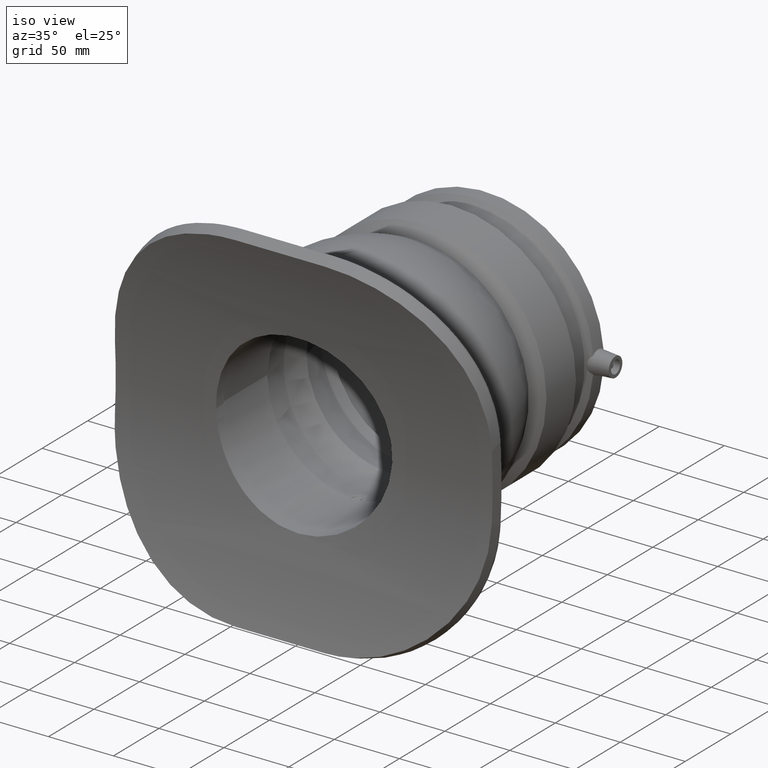
[diagram: clean part render]
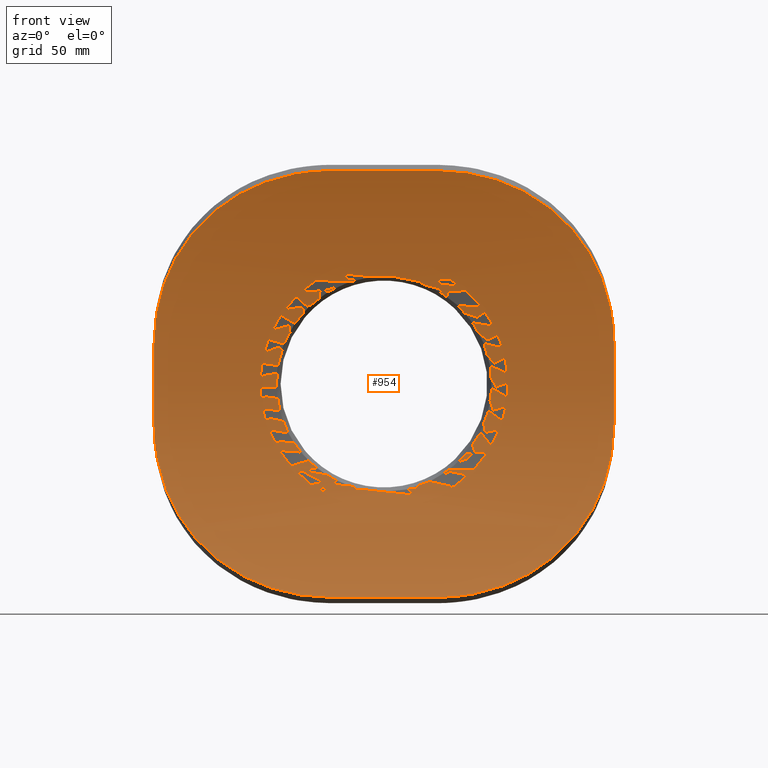
[diagram: tour spotlight — one face highlighted and labeled with its STEP entity id]
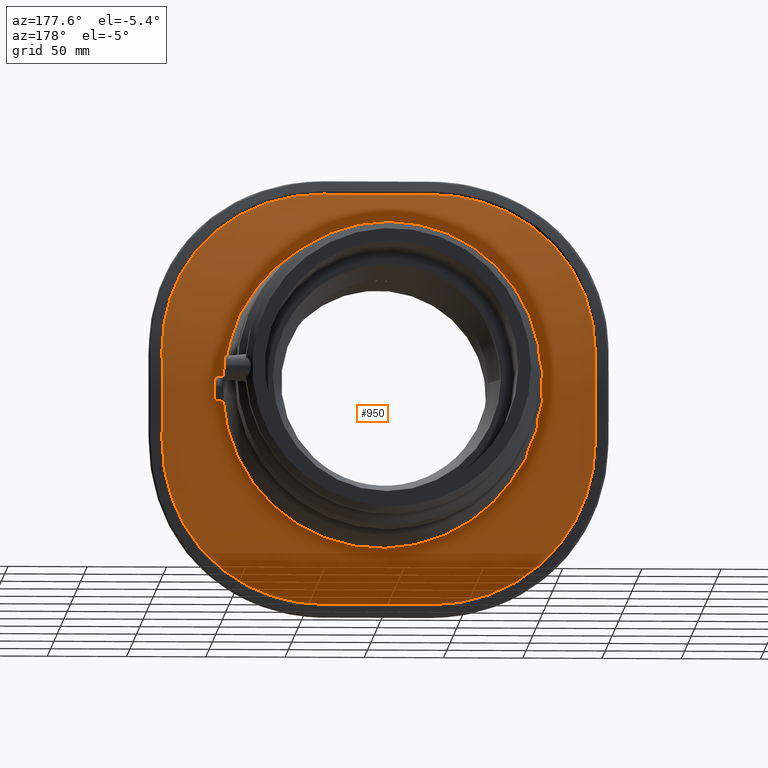
[diagram: tour spotlight — one face highlighted and labeled with its STEP entity id]
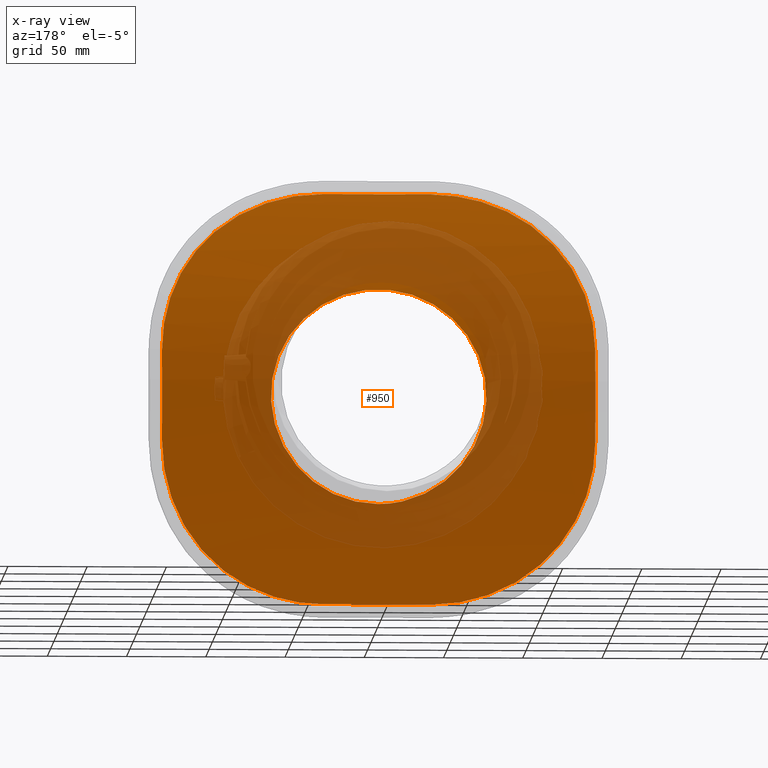
[diagram: x-ray of the same camera — body ghosted, this tour face saturated]
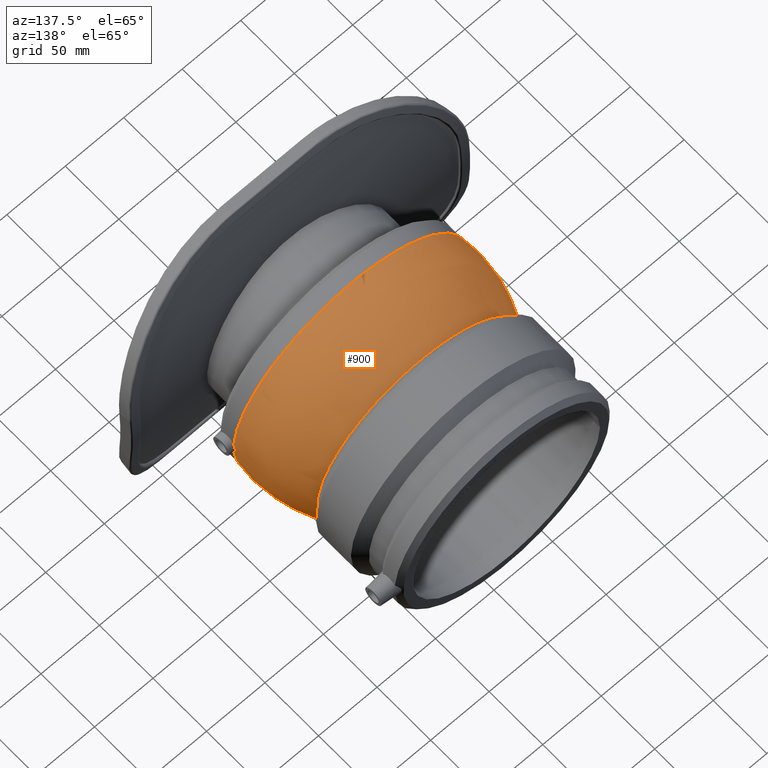
[diagram: tour spotlight — one face highlighted and labeled with its STEP entity id]
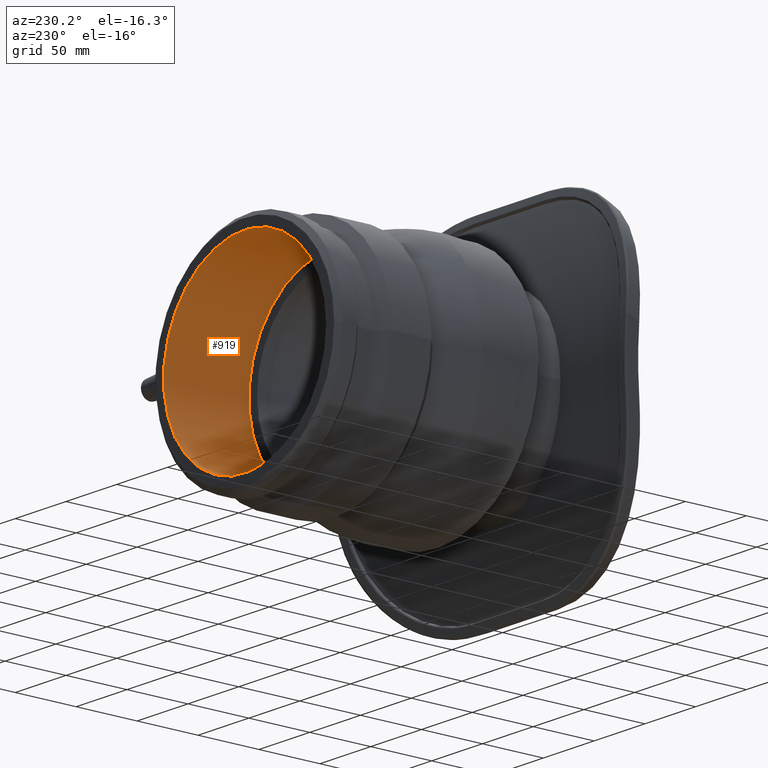
[diagram: tour spotlight — one face highlighted and labeled with its STEP entity id]
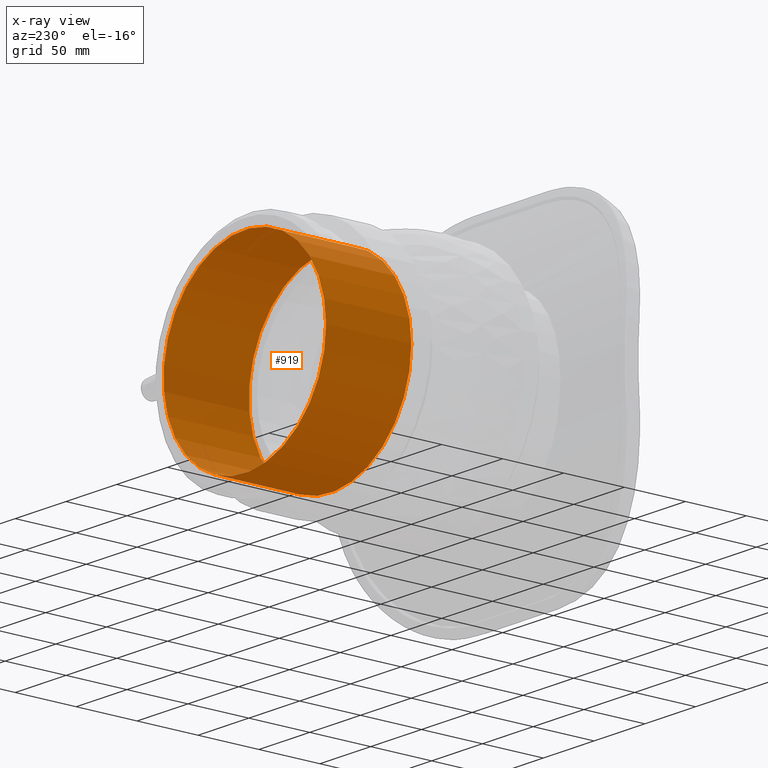
[diagram: x-ray of the same camera — body ghosted, this tour face saturated]
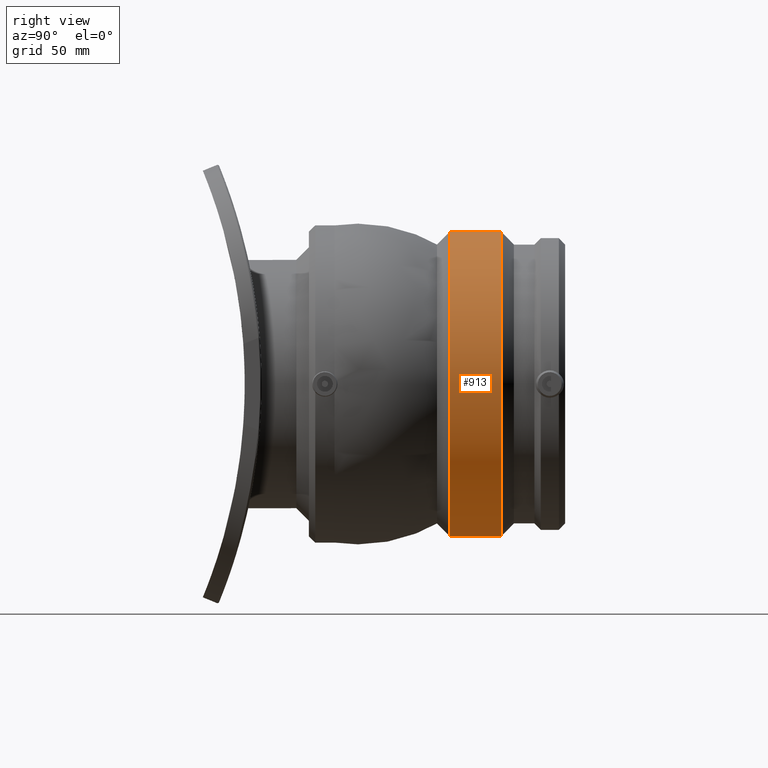
[diagram: tour spotlight — one face highlighted and labeled with its STEP entity id]
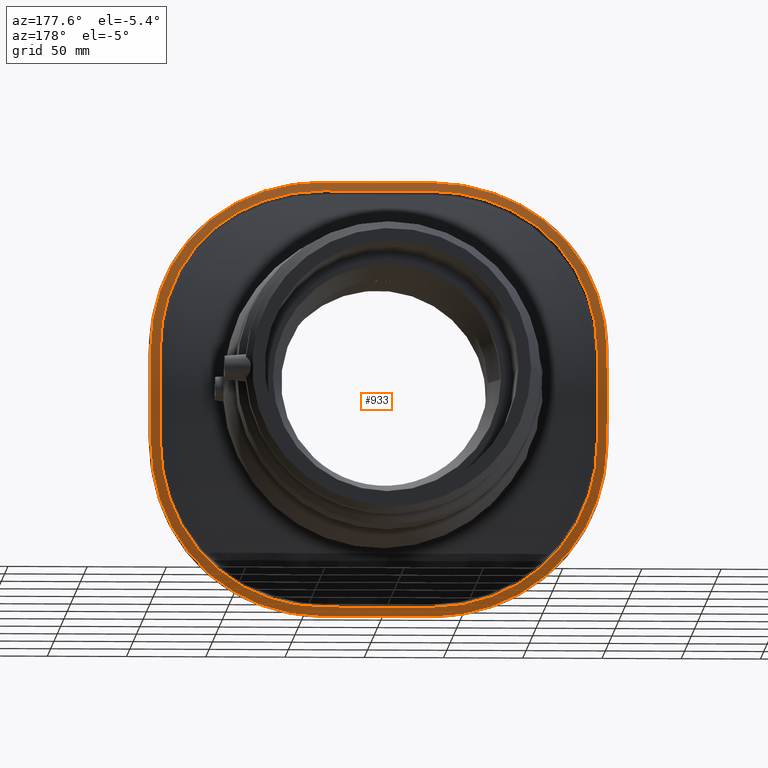
[diagram: tour spotlight — one face highlighted and labeled with its STEP entity id]
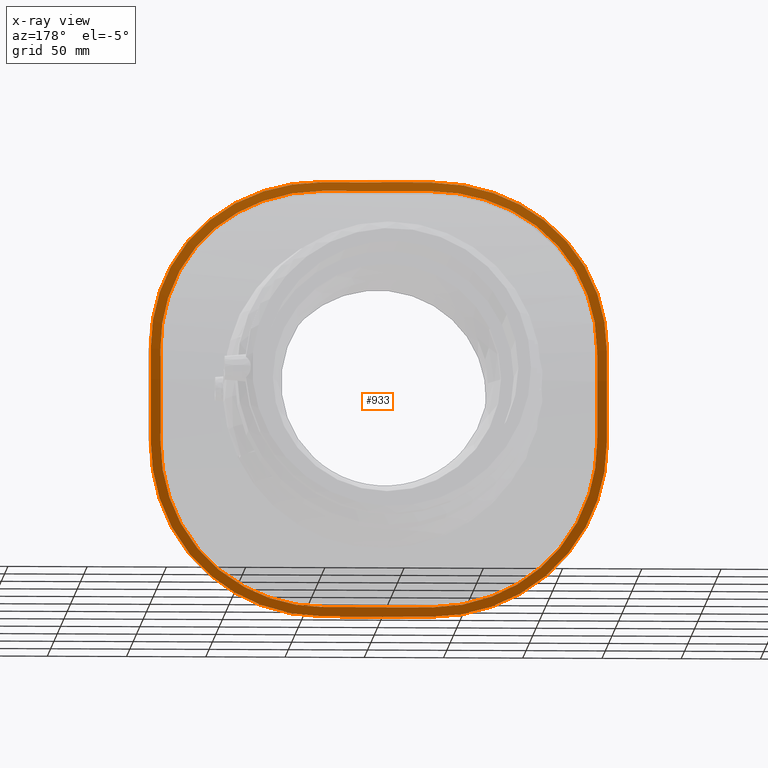
[diagram: x-ray of the same camera — body ghosted, this tour face saturated]
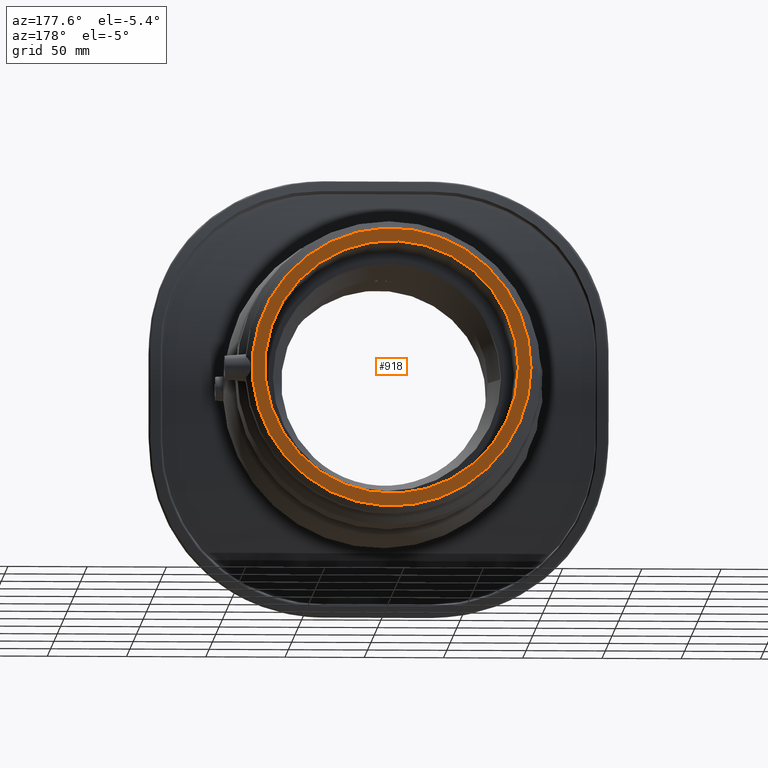
[diagram: tour spotlight — one face highlighted and labeled with its STEP entity id]
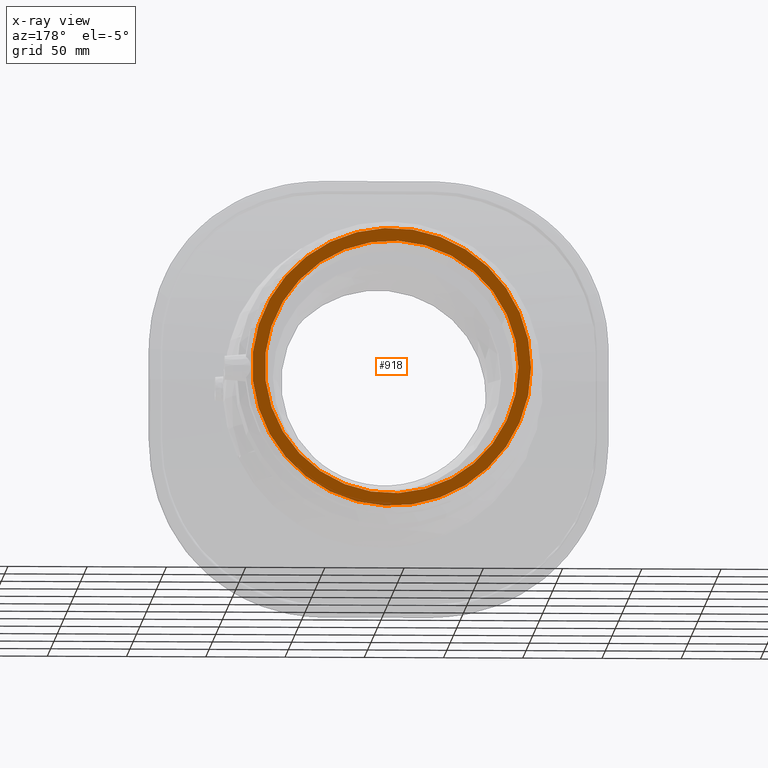
[diagram: x-ray of the same camera — body ghosted, this tour face saturated]
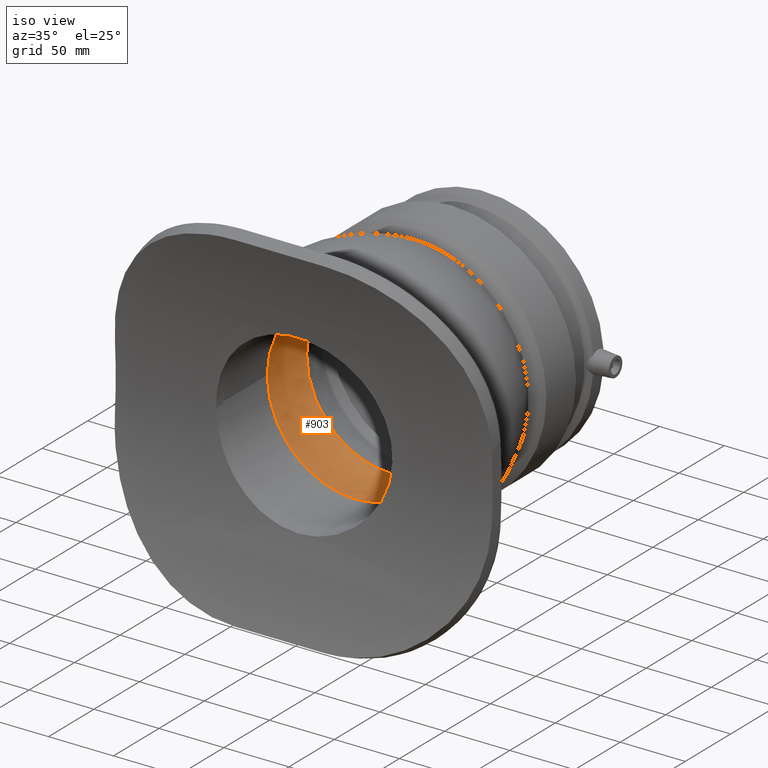
[diagram: tour spotlight — one face highlighted and labeled with its STEP entity id]
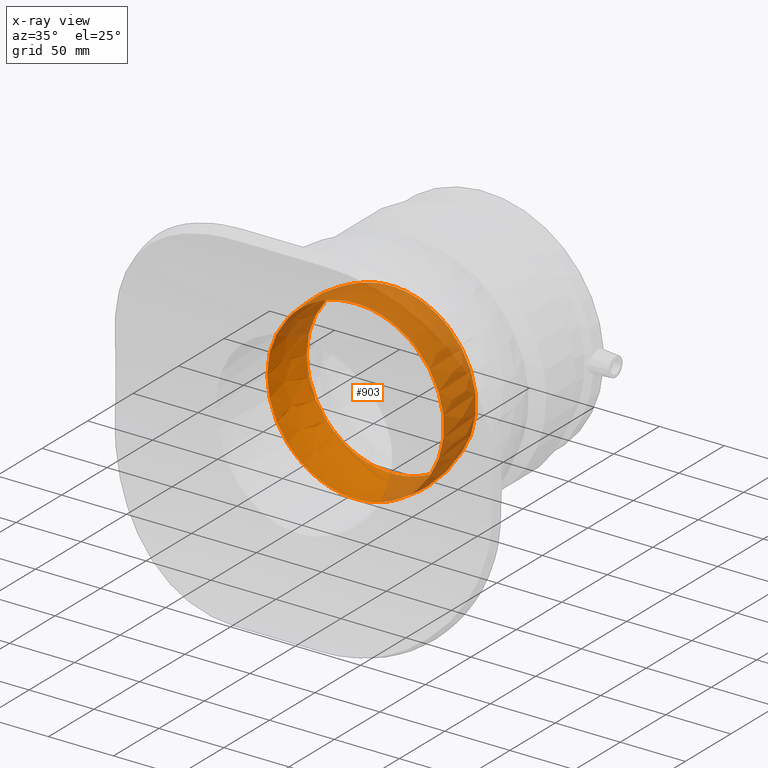
[diagram: x-ray of the same camera — body ghosted, this tour face saturated]
A machine part: a face-by-face anatomy tour. The part has 69 B-rep faces; the first image is the clean iso view, then the 8 largest visible faces are spotlighted one at a time (largest first), each with its STEP entity span.

Face 1 — front view, entity #954. In plain terms, the highlighted cylindrical surface (partial cylindrical patch) has radius 355 mm, axis along (1, 0, 0).
Definition (entity closure, byte-faithful):
#20=LINE('',#2130,#48);
#42=LINE('',#2643,#70);
#48=VECTOR('',#1244,68.3999999999999);
#70=VECTOR('',#1340,68.3999999999999);
#98=B_SPLINE_CURVE_WITH_KNOTS('',3,(#1744,#1745,#1746,#1747,#1748,#1749,
#1750,#1751,#1752,#1753,#1754,#1755,#1756,#1757,#1758,#1759,#1760,#1761,
#1762,#1763,#1764,#1765,#1766,#1767,#1768,#1769,#1770,#1771,#1772,#1773,
#1774,#1775,#1776,#1777,#1778,#1779,#1780,#1781,#1782,#1783,#1784,#1785,
#1786,#1787,#1788,#1789,#1790,#1791,#1792,#1793,#1794,#1795,#1796,#1797,
#1798,#1799,#1800,#1801,#1802,#1803,#1804,#1805,#1806,#1807,#1808,#1809),
 .UNSPECIFIED.,.T.,.F.,(4,2,2,2,2,2,2,2,2,2,2,2,2,2,2,2,2,2,2,2,2,2,2,2,
2,2,2,2,2,2,2,2,4),(0.,1.28418362988211,2.56836725976423,3.85255088964634,
5.13673451952846,6.42085779522609,7.70498107092371,8.98910434662134,10.273227622319,
11.5573508980166,12.8414741737142,14.1255974494119,15.4097207251095,16.6939043549916,
17.9780879848737,19.2622716147558,20.5464552446379,21.8306388745201,23.1148225044022,
24.3990061342843,25.6831897641664,26.967313039864,28.2514363155617,29.5355595912593,
30.8196828669569,32.1038061426545,33.3879294183522,34.6720526940498,35.9561759697474,
37.2403595996295,38.5245432295117,39.8087268593938,41.0929104892759),
 .UNSPECIFIED.);
#107=B_SPLINE_CURVE_WITH_KNOTS('',3,(#2135,#2136,#2137,#2138,#2139,#2140,
#2141,#2142,#2143,#2144,#2145,#2146,#2147,#2148,#2149,#2150,#2151,#2152),
 .UNSPECIFIED.,.F.,.F.,(4,2,2,2,2,2,2,2,4),(17.8054394466329,19.9371474134788,
22.0688553803248,24.2005633471707,26.3322713140167,28.4204822627718,30.5086932115269,
32.596904160282,34.685115109037),.UNSPECIFIED.);
#108=B_SPLINE_CURVE_WITH_KNOTS('',3,(#2160,#2161,#2162,#2163,#2164,#2165,
#2166,#2167,#2168,#2169,#2170,#2171,#2172,#2173,#2174,#2175,#2176,#2177),
 .UNSPECIFIED.,.F.,.F.,(4,2,2,2,2,2,2,2,4),(34.685115109037,36.7733260577921,
38.8615370065472,40.9497479553023,43.0379589040574,45.1696668709033,47.3013748377493,
49.4330828045952,51.5647907714412),.UNSPECIFIED.);
#121=B_SPLINE_CURVE_WITH_KNOTS('',3,(#2600,#2601,#2602,#2603,#2604,#2605,
#2606,#2607,#2608,#2609,#2610,#2611,#2612,#2613,#2614,#2615,#2616,#2617),
 .UNSPECIFIED.,.F.,.F.,(4,2,2,2,2,2,2,2,4),(52.4905545556699,54.6222625225159,
56.7539704893618,58.8856784562078,61.0173864230537,63.1055973718088,65.1938083205639,
67.282019269319,69.3702302180741),.UNSPECIFIED.);
#122=B_SPLINE_CURVE_WITH_KNOTS('',3,(#2624,#2625,#2626,#2627,#2628,#2629,
#2630,#2631,#2632,#2633,#2634,#2635,#2636,#2637,#2638,#2639,#2640,#2641),
 .UNSPECIFIED.,.F.,.F.,(4,2,2,2,2,2,2,2,4),(69.3702302180741,71.4584411668292,
73.5466521155843,75.6348630643393,77.7230740130944,79.8547819799404,81.9864899467863,
84.1181979136323,86.2499058804782),.UNSPECIFIED.);
#166=FACE_BOUND('',#363,.T.);
#195=CYLINDRICAL_SURFACE('',#1075,355.);
#261=FACE_OUTER_BOUND('',#362,.T.);
#362=EDGE_LOOP('',(#857,#858,#859,#860,#861,#862,#863,#864));
#363=EDGE_LOOP('',(#865));
#406=CIRCLE('',#1041,355.);
#421=CIRCLE('',#1073,355.);
#458=VERTEX_POINT('',#1743);
#475=VERTEX_POINT('',#2127);
#476=VERTEX_POINT('',#2129);
#477=VERTEX_POINT('',#2133);
#478=VERTEX_POINT('',#2154);
#479=VERTEX_POINT('',#2158);
#504=VERTEX_POINT('',#2597);
#505=VERTEX_POINT('',#2599);
#506=VERTEX_POINT('',#2620);
#547=EDGE_CURVE('',#458,#458,#98,.T.);
#573=EDGE_CURVE('',#476,#475,#20,.T.);
#576=EDGE_CURVE('',#477,#475,#107,.T.);
#578=EDGE_CURVE('',#478,#477,#406,.T.);
#580=EDGE_CURVE('',#479,#478,#108,.T.);
#622=EDGE_CURVE('',#504,#505,#121,.T.);
#625=EDGE_CURVE('',#506,#504,#421,.T.);
#626=EDGE_CURVE('',#476,#506,#122,.T.);
#627=EDGE_CURVE('',#505,#479,#42,.T.);
#857=ORIENTED_EDGE('',*,*,#622,.F.);
#858=ORIENTED_EDGE('',*,*,#625,.F.);
#859=ORIENTED_EDGE('',*,*,#626,.F.);
#860=ORIENTED_EDGE('',*,*,#573,.T.);
#861=ORIENTED_EDGE('',*,*,#576,.F.);
#862=ORIENTED_EDGE('',*,*,#578,.F.);
#863=ORIENTED_EDGE('',*,*,#580,.F.);
#864=ORIENTED_EDGE('',*,*,#627,.F.);
#865=ORIENTED_EDGE('',*,*,#547,.T.);
#954=ADVANCED_FACE('',(#261,#166),#195,.F.);
#1041=AXIS2_PLACEMENT_3D('',#2156,#1252,#1253);
#1073=AXIS2_PLACEMENT_3D('',#2622,#1334,#1335);
#1075=AXIS2_PLACEMENT_3D('',#2642,#1338,#1339);
#1244=DIRECTION('',(1.,0.,0.));
#1252=DIRECTION('center_axis',(-1.,0.,0.));
#1253=DIRECTION('ref_axis',(0.,-0.925487758283246,0.378777519485847));
#1334=DIRECTION('center_axis',(1.,0.,0.));
#1335=DIRECTION('ref_axis',(0.,-0.925487758283246,0.378777519485847));
#1338=DIRECTION('center_axis',(1.,0.,0.));
#1339=DIRECTION('ref_axis',(0.,-0.925487758283246,0.378777519485847));
#1340=DIRECTION('',(1.,0.,0.));
#1743=CARTESIAN_POINT('',(0.,-46.9735371703235,-68.));
#1744=CARTESIAN_POINT('Ctrl Pts',(0.,-46.9735371703235,-68.));
#1745=CARTESIAN_POINT('Ctrl Pts',(-4.28061209960705,-46.9735371703235,-68.));
#1746=CARTESIAN_POINT('Ctrl Pts',(-8.70394721315377,-46.8925245465351,-67.5892869237947));
#1747=CARTESIAN_POINT('Ctrl Pts',(-17.4961096786961,-46.562192984919,-65.8631653536506));
#1748=CARTESIAN_POINT('Ctrl Pts',(-21.8650264282614,-46.3131232840869,-64.548164551849));
#1749=CARTESIAN_POINT('Ctrl Pts',(-30.2386633185165,-45.6887696168533,-61.075103654211));
#1750=CARTESIAN_POINT('Ctrl Pts',(-34.2502549563989,-45.313593391412,-58.9142815416259));
#1751=CARTESIAN_POINT('Ctrl Pts',(-41.6662210647222,-44.5104360279516,-53.9249344629819));
#1752=CARTESIAN_POINT('Ctrl Pts',(-45.0704546924692,-44.0832789086014,-51.0960675489013));
#1753=CARTESIAN_POINT('Ctrl Pts',(-51.0959259527379,-43.2595633579804,-45.0705962886325));
#1754=CARTESIAN_POINT('Ctrl Pts',(-53.9247772365134,-42.8339536219612,-41.6664283101215));
#1755=CARTESIAN_POINT('Ctrl Pts',(-58.9141880153766,-42.036423767458,-34.2504204184892));
#1756=CARTESIAN_POINT('Ctrl Pts',(-61.0750826352883,-41.6652901247154,-30.2387214201588));
#1757=CARTESIAN_POINT('Ctrl Pts',(-64.5482240407459,-41.0491111089907,-21.8648755744737));
#1758=CARTESIAN_POINT('Ctrl Pts',(-65.8632322771882,-40.8041076526875,-17.4958602756926));
#1759=CARTESIAN_POINT('Ctrl Pts',(-67.5893230732144,-40.4794481900596,-8.70367159889858));
#1760=CARTESIAN_POINT('Ctrl Pts',(-68.,-40.4,-4.2804109189921));
#1761=CARTESIAN_POINT('Ctrl Pts',(-68.,-40.4,4.28041091899208));
#1762=CARTESIAN_POINT('Ctrl Pts',(-67.5893230732144,-40.4794481900596,8.70367159889856));
#1763=CARTESIAN_POINT('Ctrl Pts',(-65.8632322771882,-40.8041076526875,17.4958602756926));
#1764=CARTESIAN_POINT('Ctrl Pts',(-64.5482240407459,-41.0491111089907,21.8648755744737));
#1765=CARTESIAN_POINT('Ctrl Pts',(-61.0750826352883,-41.6652901247154,30.2387214201588));
#1766=CARTESIAN_POINT('Ctrl Pts',(-58.9141880153766,-42.036423767458,34.2504204184892));
#1767=CARTESIAN_POINT('Ctrl Pts',(-53.9247772365134,-42.8339536219612,41.6664283101215));
#1768=CARTESIAN_POINT('Ctrl Pts',(-51.095925952738,-43.2595633579804,45.0705962886325));
#1769=CARTESIAN_POINT('Ctrl Pts',(-45.0704546924692,-44.0832789086014,51.0960675489013));
#1770=CARTESIAN_POINT('Ctrl Pts',(-41.6662210647222,-44.5104360279515,53.9249344629819));
#1771=CARTESIAN_POINT('Ctrl Pts',(-34.2502549563989,-45.313593391412,58.9142815416259));
#1772=CARTESIAN_POINT('Ctrl Pts',(-30.2386633185165,-45.6887696168533,61.075103654211));
#1773=CARTESIAN_POINT('Ctrl Pts',(-21.8650264282614,-46.3131232840869,64.548164551849));
#1774=CARTESIAN_POINT('Ctrl Pts',(-17.4961096786961,-46.562192984919,65.8631653536506));
#1775=CARTESIAN_POINT('Ctrl Pts',(-8.70394721315377,-46.8925245465351,67.5892869237947));
#1776=CARTESIAN_POINT('Ctrl Pts',(-4.28061209960705,-46.9735371703234,68.));
#1777=CARTESIAN_POINT('Ctrl Pts',(4.28061209960705,-46.9735371703234,68.));
#1778=CARTESIAN_POINT('Ctrl Pts',(8.70394721315377,-46.8925245465351,67.5892869237947));
#1779=CARTESIAN_POINT('Ctrl Pts',(17.4961096786961,-46.562192984919,65.8631653536506));
#1780=CARTESIAN_POINT('Ctrl Pts',(21.8650264282614,-46.3131232840869,64.548164551849));
#1781=CARTESIAN_POINT('Ctrl Pts',(30.2386633185165,-45.6887696168533,61.075103654211));
#1782=CARTESIAN_POINT('Ctrl Pts',(34.2502549563989,-45.313593391412,58.9142815416259));
#1783=CARTESIAN_POINT('Ctrl Pts',(41.6662210647222,-44.5104360279516,53.9249344629819));
#1784=CARTESIAN_POINT('Ctrl Pts',(45.0704546924692,-44.0832789086014,51.0960675489013));
#1785=CARTESIAN_POINT('Ctrl Pts',(51.0959259527379,-43.2595633579804,45.0705962886325));
#1786=CARTESIAN_POINT('Ctrl Pts',(53.9247772365134,-42.8339536219612,41.6664283101215));
#1787=CARTESIAN_POINT('Ctrl Pts',(58.9141880153766,-42.036423767458,34.2504204184892));
#1788=CARTESIAN_POINT('Ctrl Pts',(61.0750826352883,-41.6652901247154,30.2387214201589));
#1789=CARTESIAN_POINT('Ctrl Pts',(64.5482240407459,-41.0491111089907,21.8648755744737));
#1790=CARTESIAN_POINT('Ctrl Pts',(65.8632322771882,-40.8041076526875,17.4958602756926));
#1791=CARTESIAN_POINT('Ctrl Pts',(67.5893230732144,-40.4794481900596,8.70367159889858));
#1792=CARTESIAN_POINT('Ctrl Pts',(68.,-40.4,4.28041091899211));
#1793=CARTESIAN_POINT('Ctrl Pts',(68.,-40.4,-4.28041091899206));
#1794=CARTESIAN_POINT('Ctrl Pts',(67.5893230732144,-40.4794481900596,-8.70367159889852));
#1795=CARTESIAN_POINT('Ctrl Pts',(65.8632322771882,-40.8041076526875,-17.4958602756926));
#1796=CARTESIAN_POINT('Ctrl Pts',(64.5482240407459,-41.0491111089907,-21.8648755744737));
#1797=CARTESIAN_POINT('Ctrl Pts',(61.0750826352883,-41.6652901247154,-30.2387214201588));
#1798=CARTESIAN_POINT('Ctrl Pts',(58.9141880153766,-42.036423767458,-34.2504204184892));
#1799=CARTESIAN_POINT('Ctrl Pts',(53.9247772365133,-42.8339536219612,-41.6664283101215));
#1800=CARTESIAN_POINT('Ctrl Pts',(51.095925952738,-43.2595633579804,-45.0705962886325));
#1801=CARTESIAN_POINT('Ctrl Pts',(45.0704546924692,-44.0832789086014,-51.0960675489012));
#1802=CARTESIAN_POINT('Ctrl Pts',(41.6662210647222,-44.5104360279516,-53.9249344629819));
#1803=CARTESIAN_POINT('Ctrl Pts',(34.2502549563989,-45.313593391412,-58.9142815416259));
#1804=CARTESIAN_POINT('Ctrl Pts',(30.2386633185165,-45.6887696168533,-61.0751036542109));
#1805=CARTESIAN_POINT('Ctrl Pts',(21.8650264282614,-46.3131232840869,-64.548164551849));
#1806=CARTESIAN_POINT('Ctrl Pts',(17.4961096786961,-46.562192984919,-65.8631653536506));
#1807=CARTESIAN_POINT('Ctrl Pts',(8.70394721315378,-46.8925245465351,-67.5892869237947));
#1808=CARTESIAN_POINT('Ctrl Pts',(4.28061209960705,-46.9735371703235,-68.));
#1809=CARTESIAN_POINT('Ctrl Pts',(-2.22044604925031E-15,-46.9735371703235,
-68.));
#2127=CARTESIAN_POINT('',(34.2,-66.8518458094475,-134.466019417476));
#2129=CARTESIAN_POINT('',(-34.2,-66.8518458094475,-134.466019417476));
#2130=CARTESIAN_POINT('',(0.,-66.8518458094475,-134.466019417476));
#2133=CARTESIAN_POINT('',(145.,-41.2958893608107,-25.2047382138521));
#2135=CARTESIAN_POINT('Ctrl Pts',(145.,-41.2958893608108,-25.2047382138521));
#2136=CARTESIAN_POINT('Ctrl Pts',(145.,-41.8003883397097,-32.2924992818564));
#2137=CARTESIAN_POINT('Ctrl Pts',(144.372599362795,-42.5411317905478,-39.6129115581847));
#2138=CARTESIAN_POINT('Ctrl Pts',(141.654612677418,-44.4735854426768,-54.1222246549232));
#2139=CARTESIAN_POINT('Ctrl Pts',(139.563667929075,-45.6647294021734,-61.311133689464));
#2140=CARTESIAN_POINT('Ctrl Pts',(133.960184384722,-48.3479474522475,-75.0245780797503));
#2141=CARTESIAN_POINT('Ctrl Pts',(130.441962329454,-49.8410464108172,-81.5624595814191));
#2142=CARTESIAN_POINT('Ctrl Pts',(122.242781334013,-52.8992313228034,-93.5769665758934));
#2143=CARTESIAN_POINT('Ctrl Pts',(117.561362905368,-54.4620509183672,-99.0538552636885));
#2144=CARTESIAN_POINT('Ctrl Pts',(107.63580794286,-57.3783544375124,-108.584964314575));
#2145=CARTESIAN_POINT('Ctrl Pts',(102.08363722755,-58.831673396134,-112.975010651467));
#2146=CARTESIAN_POINT('Ctrl Pts',(89.9881636485686,-61.5124892325405,-120.667815334512));
#2147=CARTESIAN_POINT('Ctrl Pts',(83.4452438034146,-62.7380326870118,-123.971856458128));
#2148=CARTESIAN_POINT('Ctrl Pts',(69.794398921018,-64.7563346475545,-129.258547866291));
#2149=CARTESIAN_POINT('Ctrl Pts',(62.6755357600087,-65.549353781832,-131.246031984361));
#2150=CARTESIAN_POINT('Ctrl Pts',(48.3587457465418,-66.5973924681666,-133.849971992569));
#2151=CARTESIAN_POINT('Ctrl Pts',(41.1607031625169,-66.8518458094476,-134.466019417476));
#2152=CARTESIAN_POINT('Ctrl Pts',(34.2,-66.8518458094476,-134.466019417476));
#2154=CARTESIAN_POINT('',(145.,-41.2958893608107,25.2047382138521));
#2156=CARTESIAN_POINT('Origin',(145.,-395.4,0.));
#2158=CARTESIAN_POINT('',(34.2,-66.8518458094476,134.466019417476));
#2160=CARTESIAN_POINT('Ctrl Pts',(34.2,-66.8518458094476,134.466019417476));
#2161=CARTESIAN_POINT('Ctrl Pts',(41.1607031625169,-66.8518458094476,134.466019417476));
#2162=CARTESIAN_POINT('Ctrl Pts',(48.3587457465418,-66.5973924681666,133.849971992569));
#2163=CARTESIAN_POINT('Ctrl Pts',(62.6755357600087,-65.549353781832,131.246031984361));
#2164=CARTESIAN_POINT('Ctrl Pts',(69.794398921018,-64.7563346475545,129.258547866291));
#2165=CARTESIAN_POINT('Ctrl Pts',(83.4452438034146,-62.7380326870118,123.971856458128));
#2166=CARTESIAN_POINT('Ctrl Pts',(89.9881636485686,-61.5124892325405,120.667815334512));
#2167=CARTESIAN_POINT('Ctrl Pts',(102.08363722755,-58.831673396134,112.975010651467));
#2168=CARTESIAN_POINT('Ctrl Pts',(107.63580794286,-57.3783544375124,108.584964314575));
#2169=CARTESIAN_POINT('Ctrl Pts',(117.561362905368,-54.4620509183672,99.0538552636885));
#2170=CARTESIAN_POINT('Ctrl Pts',(122.242781334013,-52.8992313228034,93.5769665758935));
#2171=CARTESIAN_POINT('Ctrl Pts',(130.441962329454,-49.8410464108173,81.5624595814191));
#2172=CARTESIAN_POINT('Ctrl Pts',(133.960184384722,-48.3479474522475,75.0245780797504));
#2173=CARTESIAN_POINT('Ctrl Pts',(139.563667929075,-45.6647294021734,61.3111336894641));
#2174=CARTESIAN_POINT('Ctrl Pts',(141.654612677418,-44.4735854426769,54.1222246549233));
#2175=CARTESIAN_POINT('Ctrl Pts',(144.372599362795,-42.5411317905478,39.6129115581848));
#2176=CARTESIAN_POINT('Ctrl Pts',(145.,-41.8003883397097,32.2924992818566));
#2177=CARTESIAN_POINT('Ctrl Pts',(145.,-41.2958893608108,25.2047382138522));
#2597=CARTESIAN_POINT('',(-145.,-41.2958893608107,25.2047382138521));
#2599=CARTESIAN_POINT('',(-34.2,-66.8518458094476,134.466019417476));
#2600=CARTESIAN_POINT('Ctrl Pts',(-145.,-41.2958893608108,25.2047382138521));
#2601=CARTESIAN_POINT('Ctrl Pts',(-145.,-41.8003883397097,32.2924992818564));
#2602=CARTESIAN_POINT('Ctrl Pts',(-144.372599362795,-42.5411317905478,39.6129115581847));
#2603=CARTESIAN_POINT('Ctrl Pts',(-141.654612677418,-44.4735854426768,54.1222246549232));
#2604=CARTESIAN_POINT('Ctrl Pts',(-139.563667929075,-45.6647294021734,61.311133689464));
#2605=CARTESIAN_POINT('Ctrl Pts',(-133.960184384722,-48.3479474522474,75.0245780797503));
#2606=CARTESIAN_POINT('Ctrl Pts',(-130.441962329454,-49.8410464108173,81.5624595814191));
#2607=CARTESIAN_POINT('Ctrl Pts',(-122.242781334013,-52.8992313228034,93.5769665758935));
#2608=CARTESIAN_POINT('Ctrl Pts',(-117.561362905368,-54.4620509183672,99.0538552636885));
#2609=CARTESIAN_POINT('Ctrl Pts',(-107.63580794286,-57.3783544375124,108.584964314575));
#2610=CARTESIAN_POINT('Ctrl Pts',(-102.08363722755,-58.831673396134,112.975010651467));
#2611=CARTESIAN_POINT('Ctrl Pts',(-89.9881636485687,-61.5124892325405,120.667815334512));
#2612=CARTESIAN_POINT('Ctrl Pts',(-83.4452438034146,-62.7380326870118,123.971856458128));
#2613=CARTESIAN_POINT('Ctrl Pts',(-69.794398921018,-64.7563346475545,129.258547866291));
#2614=CARTESIAN_POINT('Ctrl Pts',(-62.6755357600087,-65.549353781832,131.24603198436));
#2615=CARTESIAN_POINT('Ctrl Pts',(-48.3587457465419,-66.5973924681666,133.849971992569));
#2616=CARTESIAN_POINT('Ctrl Pts',(-41.1607031625169,-66.8518458094476,134.466019417476));
#2617=CARTESIAN_POINT('Ctrl Pts',(-34.2,-66.8518458094476,134.466019417476));
#2620=CARTESIAN_POINT('',(-145.,-41.2958893608107,-25.2047382138521));
#2622=CARTESIAN_POINT('Origin',(-145.,-395.4,0.));
#2624=CARTESIAN_POINT('Ctrl Pts',(-34.2,-66.8518458094476,-134.466019417476));
#2625=CARTESIAN_POINT('Ctrl Pts',(-41.1607031625169,-66.8518458094476,-134.466019417476));
#2626=CARTESIAN_POINT('Ctrl Pts',(-48.3587457465418,-66.5973924681666,-133.849971992569));
#2627=CARTESIAN_POINT('Ctrl Pts',(-62.6755357600087,-65.549353781832,-131.246031984361));
#2628=CARTESIAN_POINT('Ctrl Pts',(-69.794398921018,-64.7563346475545,-129.258547866291));
#2629=CARTESIAN_POINT('Ctrl Pts',(-83.4452438034146,-62.7380326870118,-123.971856458128));
#2630=CARTESIAN_POINT('Ctrl Pts',(-89.9881636485686,-61.5124892325405,-120.667815334512));
#2631=CARTESIAN_POINT('Ctrl Pts',(-102.08363722755,-58.831673396134,-112.975010651467));
#2632=CARTESIAN_POINT('Ctrl Pts',(-107.63580794286,-57.3783544375124,-108.584964314575));
#2633=CARTESIAN_POINT('Ctrl Pts',(-117.561362905368,-54.4620509183672,-99.0538552636885));
#2634=CARTESIAN_POINT('Ctrl Pts',(-122.242781334013,-52.8992313228034,-93.5769665758934));
#2635=CARTESIAN_POINT('Ctrl Pts',(-130.441962329454,-49.8410464108172,-81.5624595814191));
#2636=CARTESIAN_POINT('Ctrl Pts',(-133.960184384722,-48.3479474522475,-75.0245780797503));
#2637=CARTESIAN_POINT('Ctrl Pts',(-139.563667929075,-45.6647294021734,-61.311133689464));
#2638=CARTESIAN_POINT('Ctrl Pts',(-141.654612677418,-44.4735854426768,-54.1222246549232));
#2639=CARTESIAN_POINT('Ctrl Pts',(-144.372599362795,-42.5411317905478,-39.6129115581847));
#2640=CARTESIAN_POINT('Ctrl Pts',(-145.,-41.8003883397097,-32.2924992818564));
#2641=CARTESIAN_POINT('Ctrl Pts',(-145.,-41.2958893608108,-25.2047382138521));
#2642=CARTESIAN_POINT('Origin',(0.,-395.4,0.));
#2643=CARTESIAN_POINT('',(0.,-66.8518458094476,134.466019417476));

Face 2 — auxiliary view, entity #950. An x-ray twin of the same camera follows (body ghosted, this face saturated) — the face is partly hidden behind the body. In plain terms, the highlighted cylindrical surface (partial cylindrical patch) has radius 363.31 mm, axis along (1, 0, 0).
Definition (entity closure, byte-faithful):
#33=LINE('',#2525,#61);
#38=LINE('',#2594,#66);
#61=VECTOR('',#1307,68.3999999999999);
#66=VECTOR('',#1324,68.3999999999999);
#97=B_SPLINE_CURVE_WITH_KNOTS('',3,(#1677,#1678,#1679,#1680,#1681,#1682,
#1683,#1684,#1685,#1686,#1687,#1688,#1689,#1690,#1691,#1692,#1693,#1694,
#1695,#1696,#1697,#1698,#1699,#1700,#1701,#1702,#1703,#1704,#1705,#1706,
#1707,#1708,#1709,#1710,#1711,#1712,#1713,#1714,#1715,#1716,#1717,#1718,
#1719,#1720,#1721,#1722,#1723,#1724,#1725,#1726,#1727,#1728,#1729,#1730,
#1731,#1732,#1733,#1734,#1735,#1736,#1737,#1738,#1739,#1740,#1741,#1742),
 .UNSPECIFIED.,.T.,.F.,(4,2,2,2,2,2,2,2,2,2,2,2,2,2,2,2,2,2,2,2,2,2,2,2,
2,2,2,2,2,2,2,2,4),(0.,1.28402363107659,2.56804726215318,3.85207089322977,
5.13609452430636,6.42006323074693,7.70403193718749,8.98800064362805,10.2719693500686,
11.5559380565092,12.8399067629497,14.1238754693903,15.4078441758309,16.6918678069075,
17.975891437984,19.2599150690606,20.5439387001372,21.8279623312138,23.1119859622904,
24.396009593367,25.6800332244436,26.9640019308842,28.2479706373247,29.5319393437653,
30.8159080502058,32.0998767566464,33.383845463087,34.6678141695275,35.9517828759681,
37.2358065070447,38.5198301381213,39.8038537691979,41.0878774002745),
 .UNSPECIFIED.);
#117=B_SPLINE_CURVE_WITH_KNOTS('',3,(#2504,#2505,#2506,#2507,#2508,#2509,
#2510,#2511,#2512,#2513,#2514,#2515,#2516,#2517,#2518,#2519,#2520,#2521),
 .UNSPECIFIED.,.F.,.F.,(4,2,2,2,2,2,2,2,4),(48.3074781417619,50.2808638408187,
52.2542495398755,54.2276352389324,56.2010209379891,58.1311896972979,60.0613584566066,
61.9915272159153,63.921695975224),.UNSPECIFIED.);
#118=B_SPLINE_CURVE_WITH_KNOTS('',3,(#2529,#2530,#2531,#2532,#2533,#2534,
#2535,#2536,#2537,#2538,#2539,#2540,#2541,#2542,#2543,#2544,#2545,#2546),
 .UNSPECIFIED.,.F.,.F.,(4,2,2,2,2,2,2,2,4),(31.960847987612,33.8910167469207,
35.8211855062294,37.7513542655381,39.6815230248468,41.6549087239036,43.6282944229605,
45.6016801220173,47.575065821074),.UNSPECIFIED.);
#119=B_SPLINE_CURVE_WITH_KNOTS('',3,(#2554,#2555,#2556,#2557,#2558,#2559,
#2560,#2561,#2562,#2563,#2564,#2565,#2566,#2567,#2568,#2569,#2570,#2571),
 .UNSPECIFIED.,.F.,.F.,(4,2,2,2,2,2,2,2,4),(16.3466301541499,18.3200158532067,
20.2934015522635,22.2667872513203,24.2401729503771,26.1703417096859,28.1005104689946,
30.0306792283033,31.960847987612),.UNSPECIFIED.);
#120=B_SPLINE_CURVE_WITH_KNOTS('',3,(#2574,#2575,#2576,#2577,#2578,#2579,
#2580,#2581,#2582,#2583,#2584,#2585,#2586,#2587,#2588,#2589,#2590,#2591),
 .UNSPECIFIED.,.F.,.F.,(4,2,2,2,2,2,2,2,4),(0.,1.93016875930871,3.86033751861743,
5.79050627792614,7.72067503723486,9.69406073629166,11.6674464353485,13.6408321344053,
15.6142178334621),.UNSPECIFIED.);
#165=FACE_BOUND('',#358,.T.);
#192=CYLINDRICAL_SURFACE('',#1070,363.31);
#257=FACE_OUTER_BOUND('',#357,.T.);
#357=EDGE_LOOP('',(#836,#837,#838,#839,#840,#841,#842,#843));
#358=EDGE_LOOP('',(#844));
#419=CIRCLE('',#1061,363.31);
#420=CIRCLE('',#1066,363.31);
#457=VERTEX_POINT('',#1676);
#496=VERTEX_POINT('',#2496);
#497=VERTEX_POINT('',#2498);
#498=VERTEX_POINT('',#2502);
#499=VERTEX_POINT('',#2523);
#500=VERTEX_POINT('',#2527);
#501=VERTEX_POINT('',#2548);
#502=VERTEX_POINT('',#2552);
#503=VERTEX_POINT('',#2573);
#546=EDGE_CURVE('',#457,#457,#97,.T.);
#606=EDGE_CURVE('',#497,#496,#419,.F.);
#609=EDGE_CURVE('',#496,#498,#117,.T.);
#611=EDGE_CURVE('',#498,#499,#33,.F.);
#613=EDGE_CURVE('',#499,#500,#118,.T.);
#615=EDGE_CURVE('',#500,#501,#420,.T.);
#617=EDGE_CURVE('',#501,#502,#119,.T.);
#618=EDGE_CURVE('',#503,#497,#120,.T.);
#620=EDGE_CURVE('',#503,#502,#38,.F.);
#836=ORIENTED_EDGE('',*,*,#609,.T.);
#837=ORIENTED_EDGE('',*,*,#611,.T.);
#838=ORIENTED_EDGE('',*,*,#613,.T.);
#839=ORIENTED_EDGE('',*,*,#615,.T.);
#840=ORIENTED_EDGE('',*,*,#617,.T.);
#841=ORIENTED_EDGE('',*,*,#620,.F.);
#842=ORIENTED_EDGE('',*,*,#618,.T.);
#843=ORIENTED_EDGE('',*,*,#606,.T.);
#844=ORIENTED_EDGE('',*,*,#546,.T.);
#950=ADVANCED_FACE('',(#257,#165),#192,.T.);
#1061=AXIS2_PLACEMENT_3D('',#2499,#1298,#1299);
#1066=AXIS2_PLACEMENT_3D('',#2550,#1314,#1315);
#1070=AXIS2_PLACEMENT_3D('',#2595,#1325,#1326);
#1298=DIRECTION('center_axis',(-1.,0.,0.));
#1299=DIRECTION('ref_axis',(0.,-0.925487758283246,0.378777519485847));
#1307=DIRECTION('',(-1.,0.,0.));
#1314=DIRECTION('center_axis',(-1.,0.,0.));
#1315=DIRECTION('ref_axis',(0.,-0.925487758283246,0.378777519485847));
#1324=DIRECTION('',(-1.,0.,0.));
#1325=DIRECTION('center_axis',(1.,0.,0.));
#1326=DIRECTION('ref_axis',(0.,-0.925487758283246,0.378777519485847));
#1676=CARTESIAN_POINT('',(0.,-38.5104427137157,-68.));
#1677=CARTESIAN_POINT('Ctrl Pts',(0.,-38.5104427137157,-68.));
#1678=CARTESIAN_POINT('Ctrl Pts',(4.2800787702553,-38.5104427137157,-68.));
#1679=CARTESIAN_POINT('Ctrl Pts',(8.7030273861977,-38.4313722387549,-67.5893893594667));
#1680=CARTESIAN_POINT('Ctrl Pts',(17.4947453284263,-38.108907704733,-65.863511338843));
#1681=CARTESIAN_POINT('Ctrl Pts',(21.8636031731764,-37.8657552740105,-64.5486497640961));
#1682=CARTESIAN_POINT('Ctrl Pts',(30.2373958604651,-37.2561477436214,-61.0757344122915));
#1683=CARTESIAN_POINT('Ctrl Pts',(34.2491930245822,-36.8897963371716,-58.9149185575378));
#1684=CARTESIAN_POINT('Ctrl Pts',(41.6656610597803,-36.1054325233144,-53.9253886440555));
#1685=CARTESIAN_POINT('Ctrl Pts',(45.0701880239105,-35.6882248322545,-51.09633421746));
#1686=CARTESIAN_POINT('Ctrl Pts',(51.0962053320258,-34.8836171434481,-45.0703169093446));
#1687=CARTESIAN_POINT('Ctrl Pts',(53.9252455575211,-34.4678512955685,-41.6658496760123));
#1688=CARTESIAN_POINT('Ctrl Pts',(58.9148334910404,-33.6887319076786,-34.2493435353231));
#1689=CARTESIAN_POINT('Ctrl Pts',(61.0757153324175,-33.3261480046764,-30.237448594652));
#1690=CARTESIAN_POINT('Ctrl Pts',(64.5487039774875,-32.7241578753807,-21.8634657260121));
#1691=CARTESIAN_POINT('Ctrl Pts',(65.8635722704927,-32.484793975842,-17.4945182237489));
#1692=CARTESIAN_POINT('Ctrl Pts',(67.5894222572573,-32.1676134863713,-8.70277651399685));
#1693=CARTESIAN_POINT('Ctrl Pts',(68.,-32.09,-4.27989568813521));
#1694=CARTESIAN_POINT('Ctrl Pts',(68.,-32.09,4.27989568813521));
#1695=CARTESIAN_POINT('Ctrl Pts',(67.5894222572573,-32.1676134863713,8.70277651399686));
#1696=CARTESIAN_POINT('Ctrl Pts',(65.8635722704927,-32.484793975842,17.4945182237489));
#1697=CARTESIAN_POINT('Ctrl Pts',(64.5487039774875,-32.7241578753807,21.8634657260121));
#1698=CARTESIAN_POINT('Ctrl Pts',(61.0757153324174,-33.3261480046764,30.237448594652));
#1699=CARTESIAN_POINT('Ctrl Pts',(58.9148334910404,-33.6887319076786,34.2493435353231));
#1700=CARTESIAN_POINT('Ctrl Pts',(53.925245557521,-34.4678512955685,41.6658496760124));
#1701=CARTESIAN_POINT('Ctrl Pts',(51.0962053320258,-34.8836171434481,45.0703169093446));
#1702=CARTESIAN_POINT('Ctrl Pts',(45.0701880239105,-35.6882248322545,51.09633421746));
#1703=CARTESIAN_POINT('Ctrl Pts',(41.6656610597803,-36.1054325233144,53.9253886440555));
#1704=CARTESIAN_POINT('Ctrl Pts',(34.2491930245822,-36.8897963371716,58.9149185575378));
#1705=CARTESIAN_POINT('Ctrl Pts',(30.2373958604651,-37.2561477436214,61.0757344122915));
#1706=CARTESIAN_POINT('Ctrl Pts',(21.8636031731764,-37.8657552740105,64.5486497640961));
#1707=CARTESIAN_POINT('Ctrl Pts',(17.4947453284263,-38.108907704733,65.863511338843));
#1708=CARTESIAN_POINT('Ctrl Pts',(8.7030273861977,-38.4313722387549,67.5893893594667));
#1709=CARTESIAN_POINT('Ctrl Pts',(4.2800787702553,-38.5104427137158,68.));
#1710=CARTESIAN_POINT('Ctrl Pts',(-4.2800787702553,-38.5104427137158,68.));
#1711=CARTESIAN_POINT('Ctrl Pts',(-8.70302738619769,-38.4313722387549,67.5893893594667));
#1712=CARTESIAN_POINT('Ctrl Pts',(-17.4947453284263,-38.108907704733,65.863511338843));
#1713=CARTESIAN_POINT('Ctrl Pts',(-21.8636031731764,-37.8657552740105,64.5486497640962));
#1714=CARTESIAN_POINT('Ctrl Pts',(-30.2373958604651,-37.2561477436214,61.0757344122915));
#1715=CARTESIAN_POINT('Ctrl Pts',(-34.2491930245822,-36.8897963371716,58.9149185575378));
#1716=CARTESIAN_POINT('Ctrl Pts',(-41.6656610597803,-36.1054325233144,53.9253886440555));
#1717=CARTESIAN_POINT('Ctrl Pts',(-45.0701880239105,-35.6882248322545,51.09633421746));
#1718=CARTESIAN_POINT('Ctrl Pts',(-51.0962053320258,-34.8836171434481,45.0703169093446));
#1719=CARTESIAN_POINT('Ctrl Pts',(-53.925245557521,-34.4678512955685,41.6658496760124));
#1720=CARTESIAN_POINT('Ctrl Pts',(-58.9148334910404,-33.6887319076786,34.2493435353231));
#1721=CARTESIAN_POINT('Ctrl Pts',(-61.0757153324175,-33.3261480046764,30.237448594652));
#1722=CARTESIAN_POINT('Ctrl Pts',(-64.5487039774875,-32.7241578753807,21.8634657260121));
#1723=CARTESIAN_POINT('Ctrl Pts',(-65.8635722704927,-32.484793975842,17.4945182237489));
#1724=CARTESIAN_POINT('Ctrl Pts',(-67.5894222572573,-32.1676134863713,8.70277651399685));
#1725=CARTESIAN_POINT('Ctrl Pts',(-68.,-32.09,4.27989568813521));
#1726=CARTESIAN_POINT('Ctrl Pts',(-68.,-32.09,-4.27989568813522));
#1727=CARTESIAN_POINT('Ctrl Pts',(-67.5894222572573,-32.1676134863713,-8.70277651399688));
#1728=CARTESIAN_POINT('Ctrl Pts',(-65.8635722704927,-32.484793975842,-17.4945182237489));
#1729=CARTESIAN_POINT('Ctrl Pts',(-64.5487039774875,-32.7241578753807,-21.8634657260121));
#1730=CARTESIAN_POINT('Ctrl Pts',(-61.0757153324174,-33.3261480046764,-30.237448594652));
#1731=CARTESIAN_POINT('Ctrl Pts',(-58.9148334910404,-33.6887319076786,-34.2493435353231));
#1732=CARTESIAN_POINT('Ctrl Pts',(-53.925245557521,-34.4678512955685,-41.6658496760123));
#1733=CARTESIAN_POINT('Ctrl Pts',(-51.0962053320258,-34.8836171434481,-45.0703169093446));
#1734=CARTESIAN_POINT('Ctrl Pts',(-45.0701880239105,-35.6882248322545,-51.09633421746));
#1735=CARTESIAN_POINT('Ctrl Pts',(-41.6656610597803,-36.1054325233144,-53.9253886440555));
#1736=CARTESIAN_POINT('Ctrl Pts',(-34.2491930245821,-36.8897963371716,-58.9149185575378));
#1737=CARTESIAN_POINT('Ctrl Pts',(-30.2373958604651,-37.2561477436214,-61.0757344122915));
#1738=CARTESIAN_POINT('Ctrl Pts',(-21.8636031731764,-37.8657552740105,-64.5486497640961));
#1739=CARTESIAN_POINT('Ctrl Pts',(-17.4947453284262,-38.108907704733,-65.863511338843));
#1740=CARTESIAN_POINT('Ctrl Pts',(-8.70302738619767,-38.4313722387549,-67.5893893594667));
#1741=CARTESIAN_POINT('Ctrl Pts',(-4.28007877025529,-38.5104427137157,-68.));
#1742=CARTESIAN_POINT('Ctrl Pts',(0.,-38.5104427137157,-68.));
#2496=CARTESIAN_POINT('',(-136.69,-33.2106588339996,28.5138079838269));
#2498=CARTESIAN_POINT('',(-136.69,-33.2106588339996,-28.5138079838268));
#2499=CARTESIAN_POINT('Origin',(-136.69,-395.4,0.));
#2502=CARTESIAN_POINT('',(-34.2,-56.1013688396712,129.886854580158));
#2504=CARTESIAN_POINT('Ctrl Pts',(-136.69,-33.2106588339996,28.5138079838269));
#2505=CARTESIAN_POINT('Ctrl Pts',(-136.69,-33.7269189690627,35.0714700924741));
#2506=CARTESIAN_POINT('Ctrl Pts',(-136.105975764747,-34.4442648366469,41.845410791519));
#2507=CARTESIAN_POINT('Ctrl Pts',(-133.582166981246,-36.2558914700519,55.2773955563372));
#2508=CARTESIAN_POINT('Ctrl Pts',(-131.642144452196,-37.3497021573771,61.935458302834));
#2509=CARTESIAN_POINT('Ctrl Pts',(-126.447961649712,-39.7819812154777,74.6447680938772));
#2510=CARTESIAN_POINT('Ctrl Pts',(-123.188682272528,-41.1214163774266,80.708012178924));
#2511=CARTESIAN_POINT('Ctrl Pts',(-115.596093027876,-43.8475933344454,91.8586055340061));
#2512=CARTESIAN_POINT('Ctrl Pts',(-111.262343609011,-45.2324248090864,96.9461224696185));
#2513=CARTESIAN_POINT('Ctrl Pts',(-102.080851839747,-47.8062861028999,105.79957605391));
#2514=CARTESIAN_POINT('Ctrl Pts',(-96.9488165401607,-49.0838277847622,109.879224249035));
#2515=CARTESIAN_POINT('Ctrl Pts',(-85.7683141003562,-51.4356463994968,117.033578561966));
#2516=CARTESIAN_POINT('Ctrl Pts',(-79.720205629497,-52.5082812293898,120.109384852167));
#2517=CARTESIAN_POINT('Ctrl Pts',(-67.1017091163103,-54.2728441024475,125.033029873846));
#2518=CARTESIAN_POINT('Ctrl Pts',(-60.5212089311582,-54.965054668591,126.885325733471));
#2519=CARTESIAN_POINT('Ctrl Pts',(-47.287354354199,-55.8795547639413,129.312432332915));
#2520=CARTESIAN_POINT('Ctrl Pts',(-40.6338958643623,-56.1013688396713,129.886854580158));
#2521=CARTESIAN_POINT('Ctrl Pts',(-34.2,-56.1013688396713,129.886854580158));
#2523=CARTESIAN_POINT('',(34.2,-56.1013688396712,129.886854580158));
#2525=CARTESIAN_POINT('',(0.,-56.1013688396714,129.886854580158));
#2527=CARTESIAN_POINT('',(136.69,-33.2106588339996,28.5138079838269));
#2529=CARTESIAN_POINT('Ctrl Pts',(34.2,-56.1013688396713,129.886854580158));
#2530=CARTESIAN_POINT('Ctrl Pts',(40.6338958643623,-56.1013688396713,129.886854580158));
#2531=CARTESIAN_POINT('Ctrl Pts',(47.287354354199,-55.8795547639413,129.312432332915));
#2532=CARTESIAN_POINT('Ctrl Pts',(60.5212089311581,-54.965054668591,126.885325733471));
#2533=CARTESIAN_POINT('Ctrl Pts',(67.1017091163103,-54.2728441024475,125.033029873846));
#2534=CARTESIAN_POINT('Ctrl Pts',(79.7202056294969,-52.5082812293898,120.109384852167));
#2535=CARTESIAN_POINT('Ctrl Pts',(85.7683141003562,-51.4356463994968,117.033578561966));
#2536=CARTESIAN_POINT('Ctrl Pts',(96.9488165401606,-49.0838277847622,109.879224249035));
#2537=CARTESIAN_POINT('Ctrl Pts',(102.080851839747,-47.8062861028999,105.79957605391));
#2538=CARTESIAN_POINT('Ctrl Pts',(111.262343609011,-45.2324248090864,96.9461224696186));
#2539=CARTESIAN_POINT('Ctrl Pts',(115.596093027876,-43.8475933344455,91.8586055340062));
#2540=CARTESIAN_POINT('Ctrl Pts',(123.188682272528,-41.1214163774267,80.7080121789241));
#2541=CARTESIAN_POINT('Ctrl Pts',(126.447961649712,-39.7819812154778,74.6447680938772));
#2542=CARTESIAN_POINT('Ctrl Pts',(131.642144452196,-37.3497021573771,61.9354583028342));
#2543=CARTESIAN_POINT('Ctrl Pts',(133.582166981246,-36.2558914700519,55.2773955563374));
#2544=CARTESIAN_POINT('Ctrl Pts',(136.105975764747,-34.4442648366469,41.8454107915191));
#2545=CARTESIAN_POINT('Ctrl Pts',(136.69,-33.7269189690627,35.0714700924742));
#2546=CARTESIAN_POINT('Ctrl Pts',(136.69,-33.2106588339996,28.513807983827));
#2548=CARTESIAN_POINT('',(136.69,-33.2106588339996,-28.5138079838268));
#2550=CARTESIAN_POINT('Origin',(136.69,-395.4,0.));
#2552=CARTESIAN_POINT('',(34.2,-56.1013688396713,-129.886854580158));
#2554=CARTESIAN_POINT('Ctrl Pts',(136.69,-33.2106588339996,-28.5138079838269));
#2555=CARTESIAN_POINT('Ctrl Pts',(136.69,-33.7269189690627,-35.0714700924741));
#2556=CARTESIAN_POINT('Ctrl Pts',(136.105975764747,-34.4442648366469,-41.845410791519));
#2557=CARTESIAN_POINT('Ctrl Pts',(133.582166981246,-36.255891470052,-55.2773955563372));
#2558=CARTESIAN_POINT('Ctrl Pts',(131.642144452196,-37.3497021573771,-61.9354583028341));
#2559=CARTESIAN_POINT('Ctrl Pts',(126.447961649712,-39.7819812154777,-74.6447680938772));
#2560=CARTESIAN_POINT('Ctrl Pts',(123.188682272528,-41.1214163774266,-80.708012178924));
#2561=CARTESIAN_POINT('Ctrl Pts',(115.596093027876,-43.8475933344454,-91.8586055340061));
#2562=CARTESIAN_POINT('Ctrl Pts',(111.262343609011,-45.2324248090865,-96.9461224696185));
#2563=CARTESIAN_POINT('Ctrl Pts',(102.080851839747,-47.8062861028999,-105.79957605391));
#2564=CARTESIAN_POINT('Ctrl Pts',(96.9488165401607,-49.0838277847622,-109.879224249035));
#2565=CARTESIAN_POINT('Ctrl Pts',(85.7683141003563,-51.4356463994968,-117.033578561966));
#2566=CARTESIAN_POINT('Ctrl Pts',(79.720205629497,-52.5082812293898,-120.109384852167));
#2567=CARTESIAN_POINT('Ctrl Pts',(67.1017091163103,-54.2728441024475,-125.033029873846));
#2568=CARTESIAN_POINT('Ctrl Pts',(60.5212089311582,-54.965054668591,-126.885325733471));
#2569=CARTESIAN_POINT('Ctrl Pts',(47.287354354199,-55.8795547639413,-129.312432332915));
#2570=CARTESIAN_POINT('Ctrl Pts',(40.6338958643624,-56.1013688396713,-129.886854580158));
#2571=CARTESIAN_POINT('Ctrl Pts',(34.2,-56.1013688396713,-129.886854580158));
#2573=CARTESIAN_POINT('',(-34.2,-56.1013688396713,-129.886854580158));
#2574=CARTESIAN_POINT('Ctrl Pts',(-34.2,-56.1013688396713,-129.886854580158));
#2575=CARTESIAN_POINT('Ctrl Pts',(-40.6338958643623,-56.1013688396713,-129.886854580158));
#2576=CARTESIAN_POINT('Ctrl Pts',(-47.287354354199,-55.8795547639413,-129.312432332915));
#2577=CARTESIAN_POINT('Ctrl Pts',(-60.5212089311582,-54.965054668591,-126.885325733471));
#2578=CARTESIAN_POINT('Ctrl Pts',(-67.1017091163103,-54.2728441024475,-125.033029873846));
#2579=CARTESIAN_POINT('Ctrl Pts',(-79.720205629497,-52.5082812293898,-120.109384852167));
#2580=CARTESIAN_POINT('Ctrl Pts',(-85.7683141003563,-51.4356463994968,-117.033578561966));
#2581=CARTESIAN_POINT('Ctrl Pts',(-96.9488165401607,-49.0838277847622,-109.879224249035));
#2582=CARTESIAN_POINT('Ctrl Pts',(-102.080851839747,-47.8062861028999,-105.79957605391));
#2583=CARTESIAN_POINT('Ctrl Pts',(-111.262343609011,-45.2324248090864,-96.9461224696185));
#2584=CARTESIAN_POINT('Ctrl Pts',(-115.596093027876,-43.8475933344454,-91.8586055340061));
#2585=CARTESIAN_POINT('Ctrl Pts',(-123.188682272528,-41.1214163774266,-80.708012178924));
#2586=CARTESIAN_POINT('Ctrl Pts',(-126.447961649712,-39.7819812154778,-74.6447680938771));
#2587=CARTESIAN_POINT('Ctrl Pts',(-131.642144452196,-37.3497021573771,-61.9354583028341));
#2588=CARTESIAN_POINT('Ctrl Pts',(-133.582166981246,-36.255891470052,-55.2773955563372));
#2589=CARTESIAN_POINT('Ctrl Pts',(-136.105975764747,-34.4442648366469,-41.845410791519));
#2590=CARTESIAN_POINT('Ctrl Pts',(-136.69,-33.7269189690627,-35.0714700924741));
#2591=CARTESIAN_POINT('Ctrl Pts',(-136.69,-33.2106588339996,-28.5138079838268));
#2594=CARTESIAN_POINT('',(0.,-56.1013688396713,-129.886854580158));
#2595=CARTESIAN_POINT('Origin',(0.,-395.4,0.));

Face 3 — auxiliary view, entity #900. In plain terms, the highlighted spherical surface has radius 101.1 mm.
Definition (entity closure, byte-faithful):
#85=SPHERICAL_SURFACE('',#984,101.099466751674);
#93=B_SPLINE_CURVE_WITH_KNOTS('',3,(#1461,#1462,#1463,#1464,#1465,#1466,
#1467,#1468,#1469,#1470),.UNSPECIFIED.,.F.,.F.,(4,2,2,2,4),(1.92613880133523,
2.15994972994725,2.4580023474403,2.75605496493336,2.98986589354538),
 .UNSPECIFIED.);
#143=FACE_BOUND('',#287,.T.);
#144=FACE_BOUND('',#288,.T.);
#287=EDGE_LOOP('',(#659,#660));
#288=EDGE_LOOP('',(#661));
#377=CIRCLE('',#985,100.);
#378=CIRCLE('',#986,88.);
#438=VERTEX_POINT('',#1445);
#439=VERTEX_POINT('',#1460);
#441=VERTEX_POINT('',#1492);
#523=EDGE_CURVE('',#439,#438,#93,.T.);
#527=EDGE_CURVE('',#438,#439,#377,.T.);
#528=EDGE_CURVE('',#441,#441,#378,.T.);
#659=ORIENTED_EDGE('',*,*,#523,.T.);
#660=ORIENTED_EDGE('',*,*,#527,.T.);
#661=ORIENTED_EDGE('',*,*,#528,.F.);
#900=ADVANCED_FACE('',(#143,#144),#85,.T.);
#984=AXIS2_PLACEMENT_3D('',#1490,#1129,#1130);
#985=AXIS2_PLACEMENT_3D('',#1491,#1131,#1132);
#986=AXIS2_PLACEMENT_3D('',#1493,#1133,#1134);
#1129=DIRECTION('center_axis',(6.12323399573677E-17,0.,1.));
#1130=DIRECTION('ref_axis',(1.,0.,0.));
#1131=DIRECTION('center_axis',(0.,1.,0.));
#1132=DIRECTION('ref_axis',(1.,0.,0.));
#1133=DIRECTION('center_axis',(0.,1.,0.));
#1134=DIRECTION('ref_axis',(1.,0.,0.));
#1445=CARTESIAN_POINT('',(99.8688193010284,16.16,-5.12044250221947));
#1460=CARTESIAN_POINT('',(99.8688193010284,16.16,5.12044250221947));
#1461=CARTESIAN_POINT('Ctrl Pts',(99.8688193010284,16.16,5.1204425022195));
#1462=CARTESIAN_POINT('Ctrl Pts',(99.9751473071822,16.663348774448,4.50832639343001));
#1463=CARTESIAN_POINT('Ctrl Pts',(100.066060408078,17.0945575027053,3.79324880334129));
#1464=CARTESIAN_POINT('Ctrl Pts',(100.214679202661,17.7999847243973,2.05290523415497));
#1465=CARTESIAN_POINT('Ctrl Pts',(100.255701798884,17.9950723089841,0.993508724976847));
#1466=CARTESIAN_POINT('Ctrl Pts',(100.255701798884,17.9950723089841,-0.993508724976844));
#1467=CARTESIAN_POINT('Ctrl Pts',(100.214679202662,17.7999847243973,-2.05290523415496));
#1468=CARTESIAN_POINT('Ctrl Pts',(100.066060408078,17.0945575027053,-3.79324880334129));
#1469=CARTESIAN_POINT('Ctrl Pts',(99.9751473071822,16.663348774448,-4.50832639343));
#1470=CARTESIAN_POINT('Ctrl Pts',(99.8688193010284,16.16,-5.12044250221949));
#1490=CARTESIAN_POINT('Origin',(0.,31.0295049504951,0.));
#1491=CARTESIAN_POINT('Origin',(0.,16.16,0.));
#1492=CARTESIAN_POINT('',(-88.,80.8,0.));
#1493=CARTESIAN_POINT('Origin',(0.,80.8,0.));

Face 4 — auxiliary view, entity #919. An x-ray twin of the same camera follows (body ghosted, this face saturated) — the face is partly hidden behind the body. In plain terms, the highlighted cylindrical surface (bore or boss wall) has radius 80 mm, axis along (0, 1, 0).
Definition (entity closure, byte-faithful):
#162=FACE_BOUND('',#324,.T.);
#179=CYLINDRICAL_SURFACE('',#1020,80.);
#226=FACE_OUTER_BOUND('',#323,.T.);
#323=EDGE_LOOP('',(#704));
#324=EDGE_LOOP('',(#705));
#384=CIRCLE('',#999,80.);
#393=CIRCLE('',#1019,80.);
#449=VERTEX_POINT('',#1645);
#456=VERTEX_POINT('',#1672);
#536=EDGE_CURVE('',#449,#449,#384,.T.);
#545=EDGE_CURVE('',#456,#456,#393,.T.);
#704=ORIENTED_EDGE('',*,*,#536,.F.);
#705=ORIENTED_EDGE('',*,*,#545,.T.);
#919=ADVANCED_FACE('',(#226,#162),#179,.F.);
#999=AXIS2_PLACEMENT_3D('',#1646,#1159,#1160);
#1019=AXIS2_PLACEMENT_3D('',#1673,#1199,#1200);
#1020=AXIS2_PLACEMENT_3D('',#1674,#1201,#1202);
#1159=DIRECTION('center_axis',(0.,1.,0.));
#1160=DIRECTION('ref_axis',(1.,0.,0.));
#1199=DIRECTION('center_axis',(0.,1.,0.));
#1200=DIRECTION('ref_axis',(1.,0.,0.));
#1201=DIRECTION('center_axis',(0.,1.,0.));
#1202=DIRECTION('ref_axis',(-1.,0.,0.));
#1645=CARTESIAN_POINT('',(-80.,91.6,0.));
#1646=CARTESIAN_POINT('Origin',(0.,91.6,0.));
#1672=CARTESIAN_POINT('',(-80.,161.6,0.));
#1673=CARTESIAN_POINT('Origin',(0.,161.6,0.));
#1674=CARTESIAN_POINT('Origin',(0.,126.6,0.));

Face 5 — right view, entity #913. In plain terms, the highlighted cylindrical surface (bore or boss wall) has radius 96 mm, axis along (0, 1, 0).
Definition (entity closure, byte-faithful):
#157=FACE_BOUND('',#313,.T.);
#176=CYLINDRICAL_SURFACE('',#1009,96.);
#220=FACE_OUTER_BOUND('',#312,.T.);
#312=EDGE_LOOP('',(#689));
#313=EDGE_LOOP('',(#690));
#388=CIRCLE('',#1008,96.);
#389=CIRCLE('',#1010,96.);
#452=VERTEX_POINT('',#1657);
#453=VERTEX_POINT('',#1660);
#540=EDGE_CURVE('',#452,#452,#388,.T.);
#541=EDGE_CURVE('',#453,#453,#389,.T.);
#689=ORIENTED_EDGE('',*,*,#541,.F.);
#690=ORIENTED_EDGE('',*,*,#540,.T.);
#913=ADVANCED_FACE('',(#220,#157),#176,.T.);
#1008=AXIS2_PLACEMENT_3D('',#1658,#1177,#1178);
#1009=AXIS2_PLACEMENT_3D('',#1659,#1179,#1180);
#1010=AXIS2_PLACEMENT_3D('',#1661,#1181,#1182);
#1177=DIRECTION('center_axis',(0.,1.,0.));
#1178=DIRECTION('ref_axis',(1.,0.,0.));
#1179=DIRECTION('center_axis',(0.,1.,0.));
#1180=DIRECTION('ref_axis',(-1.,0.,0.));
#1181=DIRECTION('center_axis',(0.,1.,0.));
#1182=DIRECTION('ref_axis',(1.,0.,0.));
#1657=CARTESIAN_POINT('',(-96.,88.8,0.));
#1658=CARTESIAN_POINT('Origin',(0.,88.8,0.));
#1659=CARTESIAN_POINT('Origin',(0.,105.04,0.));
#1660=CARTESIAN_POINT('',(-96.,121.28,0.));
#1661=CARTESIAN_POINT('Origin',(0.,121.28,0.));

Face 6 — auxiliary view, entity #933. An x-ray twin of the same camera follows (body ghosted, this face saturated) — the face is partly hidden behind the body. In plain terms, the highlighted cylindrical surface (partial cylindrical patch) has radius 365.65 mm, axis along (1, 0, 0).
Definition (entity closure, byte-faithful):
#16=LINE('',#1891,#44);
#18=LINE('',#2049,#46);
#25=LINE('',#2192,#53);
#26=LINE('',#2218,#54);
#44=VECTOR('',#1214,68.3999999999999);
#46=VECTOR('',#1232,68.3999999999999);
#53=VECTOR('',#1259,68.3999999999999);
#54=VECTOR('',#1262,68.3999999999999);
#100=B_SPLINE_CURVE_WITH_KNOTS('',3,(#1876,#1877,#1878,#1879,#1880,#1881,
#1882,#1883,#1884,#1885),.UNSPECIFIED.,.F.,.F.,(4,1,1,1,1,1,1,4),(0.,2.48547604850183,
4.97095209700366,7.45642814550548,9.94190419400731,12.4273802425091,14.912856291011,
17.3983323395128),.UNSPECIFIED.);
#102=B_SPLINE_CURVE_WITH_KNOTS('',3,(#1955,#1956,#1957,#1958,#1959,#1960,
#1961,#1962,#1963,#1964),.UNSPECIFIED.,.F.,.F.,(4,1,1,1,1,1,1,4),(3.12191839680254E-15,
2.48547604850183,4.97095209700366,7.45642814550549,9.94190419400731,12.4273802425091,
14.912856291011,17.3983323395128),.UNSPECIFIED.);
#104=B_SPLINE_CURVE_WITH_KNOTS('',3,(#2034,#2035,#2036,#2037,#2038,#2039,
#2040,#2041,#2042,#2043),.UNSPECIFIED.,.F.,.F.,(4,1,1,1,1,1,1,4),(1.97707469652319E-15,
2.48547891903486,4.97095783806972,7.45643675710458,9.94191567613944,12.4273945951743,
14.9128735142092,17.398352433244),.UNSPECIFIED.);
#106=B_SPLINE_CURVE_WITH_KNOTS('',3,(#2113,#2114,#2115,#2116,#2117,#2118,
#2119,#2120,#2121,#2122),.UNSPECIFIED.,.F.,.F.,(4,1,1,1,1,1,1,4),(1.76846675221999E-15,
2.48547604850183,4.97095209700366,7.45642814550548,9.94190419400731,12.4273802425091,
14.912856291011,17.3983323395128),.UNSPECIFIED.);
#109=B_SPLINE_CURVE_WITH_KNOTS('',3,(#2181,#2182,#2183,#2184,#2185,#2186,
#2187,#2188,#2189,#2190),.UNSPECIFIED.,.F.,.F.,(4,1,1,1,1,1,1,4),(-16.439579191684,
-14.0910678785863,-11.7425565654886,-9.39404525239086,-7.04553393929315,
-4.69702262619543,-2.34851131309772,0.),.UNSPECIFIED.);
#110=B_SPLINE_CURVE_WITH_KNOTS('',3,(#2194,#2195,#2196,#2197,#2198,#2199,
#2200,#2201,#2202,#2203),.UNSPECIFIED.,.F.,.F.,(4,1,1,1,1,1,1,4),(-16.439579191684,
-14.0910678785863,-11.7425565654886,-9.39404525239086,-7.04553393929315,
-3.52276696964657,-2.34851131309772,0.),.UNSPECIFIED.);
#111=B_SPLINE_CURVE_WITH_KNOTS('',3,(#2207,#2208,#2209,#2210,#2211,#2212,
#2213,#2214,#2215,#2216),.UNSPECIFIED.,.F.,.F.,(4,1,1,1,1,1,1,4),(-16.439607903169,
-14.0910924884305,-11.7425770736921,-9.39406165895369,-7.04554624421527,
-4.69703082947685,-2.34851541473842,-7.15999289121096E-16),
 .UNSPECIFIED.);
#112=B_SPLINE_CURVE_WITH_KNOTS('',3,(#2220,#2221,#2222,#2223,#2224,#2225,
#2226,#2227,#2228,#2229),.UNSPECIFIED.,.F.,.F.,(4,1,1,1,1,1,1,4),(-16.439579191684,
-14.0910678785863,-11.7425565654886,-9.39404525239086,-7.04553393929315,
-3.52276696964657,-2.34851131309772,0.),.UNSPECIFIED.);
#164=FACE_BOUND('',#340,.T.);
#185=CYLINDRICAL_SURFACE('',#1043,365.65);
#240=FACE_OUTER_BOUND('',#339,.T.);
#339=EDGE_LOOP('',(#756,#757,#758,#759,#760,#761,#762,#763));
#340=EDGE_LOOP('',(#764,#765,#766,#767,#768,#769,#770,#771));
#400=CIRCLE('',#1030,365.65);
#405=CIRCLE('',#1037,365.65);
#407=CIRCLE('',#1044,365.65);
#408=CIRCLE('',#1045,365.65);
#459=VERTEX_POINT('',#1860);
#462=VERTEX_POINT('',#1874);
#463=VERTEX_POINT('',#1887);
#465=VERTEX_POINT('',#1942);
#467=VERTEX_POINT('',#1966);
#469=VERTEX_POINT('',#2021);
#471=VERTEX_POINT('',#2045);
#473=VERTEX_POINT('',#2100);
#480=VERTEX_POINT('',#2179);
#481=VERTEX_POINT('',#2180);
#482=VERTEX_POINT('',#2191);
#483=VERTEX_POINT('',#2193);
#484=VERTEX_POINT('',#2204);
#485=VERTEX_POINT('',#2206);
#486=VERTEX_POINT('',#2217);
#487=VERTEX_POINT('',#2219);
#551=EDGE_CURVE('',#462,#459,#100,.T.);
#554=EDGE_CURVE('',#459,#463,#16,.T.);
#557=EDGE_CURVE('',#463,#465,#102,.T.);
#560=EDGE_CURVE('',#465,#467,#400,.T.);
#563=EDGE_CURVE('',#467,#469,#104,.T.);
#566=EDGE_CURVE('',#469,#471,#18,.T.);
#569=EDGE_CURVE('',#471,#473,#106,.T.);
#571=EDGE_CURVE('',#473,#462,#405,.T.);
#581=EDGE_CURVE('',#480,#481,#109,.T.);
#582=EDGE_CURVE('',#482,#480,#25,.T.);
#583=EDGE_CURVE('',#483,#482,#110,.T.);
#584=EDGE_CURVE('',#484,#483,#407,.T.);
#585=EDGE_CURVE('',#485,#484,#111,.T.);
#586=EDGE_CURVE('',#486,#485,#26,.T.);
#587=EDGE_CURVE('',#487,#486,#112,.T.);
#588=EDGE_CURVE('',#481,#487,#408,.T.);
#756=ORIENTED_EDGE('',*,*,#551,.F.);
#757=ORIENTED_EDGE('',*,*,#571,.F.);
#758=ORIENTED_EDGE('',*,*,#569,.F.);
#759=ORIENTED_EDGE('',*,*,#566,.F.);
#760=ORIENTED_EDGE('',*,*,#563,.F.);
#761=ORIENTED_EDGE('',*,*,#560,.F.);
#762=ORIENTED_EDGE('',*,*,#557,.F.);
#763=ORIENTED_EDGE('',*,*,#554,.F.);
#764=ORIENTED_EDGE('',*,*,#581,.F.);
#765=ORIENTED_EDGE('',*,*,#582,.F.);
#766=ORIENTED_EDGE('',*,*,#583,.F.);
#767=ORIENTED_EDGE('',*,*,#584,.F.);
#768=ORIENTED_EDGE('',*,*,#585,.F.);
#769=ORIENTED_EDGE('',*,*,#586,.F.);
#770=ORIENTED_EDGE('',*,*,#587,.F.);
#771=ORIENTED_EDGE('',*,*,#588,.F.);
#933=ADVANCED_FACE('',(#240,#164),#185,.T.);
#1030=AXIS2_PLACEMENT_3D('',#1970,#1223,#1224);
#1037=AXIS2_PLACEMENT_3D('',#2125,#1239,#1240);
#1043=AXIS2_PLACEMENT_3D('',#2178,#1257,#1258);
#1044=AXIS2_PLACEMENT_3D('',#2205,#1260,#1261);
#1045=AXIS2_PLACEMENT_3D('',#2230,#1263,#1264);
#1214=DIRECTION('',(-1.,0.,0.));
#1223=DIRECTION('center_axis',(-1.,0.,0.));
#1224=DIRECTION('ref_axis',(0.,1.,2.08166817117217E-17));
#1232=DIRECTION('',(1.,0.,0.));
#1239=DIRECTION('center_axis',(1.,0.,0.));
#1240=DIRECTION('ref_axis',(0.,1.,2.08166817117217E-17));
#1257=DIRECTION('center_axis',(1.,0.,0.));
#1258=DIRECTION('ref_axis',(0.,1.,0.));
#1259=DIRECTION('',(1.,0.,0.));
#1260=DIRECTION('center_axis',(1.,0.,0.));
#1261=DIRECTION('ref_axis',(0.,1.,2.08166817117217E-17));
#1262=DIRECTION('',(-1.,0.,0.));
#1263=DIRECTION('center_axis',(-1.,0.,0.));
#1264=DIRECTION('ref_axis',(0.,1.,2.08166817117217E-17));
#1860=CARTESIAN_POINT('',(34.1999999999999,-56.5760032048967,137.470803066658));
#1874=CARTESIAN_POINT('',(143.892,-30.9091423419705,29.0918748745087));
#1876=CARTESIAN_POINT('Ctrl Pts',(143.892,-30.9091423419705,29.0918748745087));
#1877=CARTESIAN_POINT('Ctrl Pts',(143.892,-31.5703113175307,37.3756327278052));
#1878=CARTESIAN_POINT('Ctrl Pts',(142.180385490637,-33.4662254542455,53.9023582365659));
#1879=CARTESIAN_POINT('Ctrl Pts',(134.286230581679,-37.7766073863317,77.3265512111529));
#1880=CARTESIAN_POINT('Ctrl Pts',(121.265388685947,-42.9763166476945,98.1228362235339));
#1881=CARTESIAN_POINT('Ctrl Pts',(103.744691391152,-48.2666952616314,115.242255885049));
#1882=CARTESIAN_POINT('Ctrl Pts',(82.6397533712941,-52.8037794036775,127.93236901971));
#1883=CARTESIAN_POINT('Ctrl Pts',(59.0563598247016,-55.8590477721331,135.721541773345));
#1884=CARTESIAN_POINT('Ctrl Pts',(42.4849201616727,-56.5760032048967,137.470803066658));
#1885=CARTESIAN_POINT('Ctrl Pts',(34.1999999999999,-56.5760032048967,137.470803066658));
#1887=CARTESIAN_POINT('',(-34.2,-56.5760032048967,137.470803066658));
#1891=CARTESIAN_POINT('',(0.,-56.5760032048967,137.470803066658));
#1942=CARTESIAN_POINT('',(-143.892,-30.9091423419705,29.0918748745087));
#1955=CARTESIAN_POINT('Ctrl Pts',(-34.2,-56.5760032048967,137.470803066658));
#1956=CARTESIAN_POINT('Ctrl Pts',(-42.4849201616727,-56.5760032048967,137.470803066658));
#1957=CARTESIAN_POINT('Ctrl Pts',(-59.0561429984331,-55.8585627309699,135.721274659706));
#1958=CARTESIAN_POINT('Ctrl Pts',(-82.639961024486,-52.8041148610368,127.932581160441));
#1959=CARTESIAN_POINT('Ctrl Pts',(-103.744622835271,-48.2665719404952,115.24218138666));
#1960=CARTESIAN_POINT('Ctrl Pts',(-121.265418478438,-42.9763699330076,98.1228684934927));
#1961=CARTESIAN_POINT('Ctrl Pts',(-134.286213351244,-37.7765764787995,77.3265325159429));
#1962=CARTESIAN_POINT('Ctrl Pts',(-142.180394344604,-33.4662413346862,53.9023678426732));
#1963=CARTESIAN_POINT('Ctrl Pts',(-143.892,-31.5703113175307,37.3756327278052));
#1964=CARTESIAN_POINT('Ctrl Pts',(-143.892,-30.9091423419705,29.0918748745087));
#1966=CARTESIAN_POINT('',(-143.892,-30.9091423419705,-29.0918748745087));
#1970=CARTESIAN_POINT('Origin',(-143.892,-395.4,0.));
#2021=CARTESIAN_POINT('',(-34.1999999999999,-56.5760032048967,-137.470803066658));
#2034=CARTESIAN_POINT('Ctrl Pts',(-143.892,-30.9091423419705,-29.0918748745087));
#2035=CARTESIAN_POINT('Ctrl Pts',(-143.892,-31.5703120811299,-37.3756422949063));
#2036=CARTESIAN_POINT('Ctrl Pts',(-142.18024548222,-33.4663383829842,-53.9031740976732));
#2037=CARTESIAN_POINT('Ctrl Pts',(-134.285617945856,-37.7769124302408,-77.3281035620635));
#2038=CARTESIAN_POINT('Ctrl Pts',(-121.263960458585,-42.9768340206215,-98.124663767036));
#2039=CARTESIAN_POINT('Ctrl Pts',(-103.74283556715,-48.2671446954753,-115.243570706646));
#2040=CARTESIAN_POINT('Ctrl Pts',(-82.6386761223148,-52.8039571740882,-127.932826450306));
#2041=CARTESIAN_POINT('Ctrl Pts',(-59.0550361453902,-55.8591559755804,-135.721816927142));
#2042=CARTESIAN_POINT('Ctrl Pts',(-42.4849297301162,-56.5760032048967,-137.470803066658));
#2043=CARTESIAN_POINT('Ctrl Pts',(-34.1999999999999,-56.5760032048967,-137.470803066658));
#2045=CARTESIAN_POINT('',(34.2,-56.5760032048967,-137.470803066658));
#2049=CARTESIAN_POINT('',(0.,-56.5760032048967,-137.470803066658));
#2100=CARTESIAN_POINT('',(143.892,-30.9091423419705,-29.0918748745087));
#2113=CARTESIAN_POINT('Ctrl Pts',(34.2,-56.5760032048967,-137.470803066658));
#2114=CARTESIAN_POINT('Ctrl Pts',(42.4849201616727,-56.5760032048967,-137.470803066658));
#2115=CARTESIAN_POINT('Ctrl Pts',(59.0561429984331,-55.85856273097,-135.721274659706));
#2116=CARTESIAN_POINT('Ctrl Pts',(82.639961024486,-52.8041148610368,-127.932581160441));
#2117=CARTESIAN_POINT('Ctrl Pts',(103.744622835271,-48.2665719404952,-115.24218138666));
#2118=CARTESIAN_POINT('Ctrl Pts',(121.265418478438,-42.9763699330076,-98.1228684934927));
#2119=CARTESIAN_POINT('Ctrl Pts',(134.286213351244,-37.7765764787995,-77.3265325159428));
#2120=CARTESIAN_POINT('Ctrl Pts',(142.180394344604,-33.4662413346861,-53.9023678426733));
#2121=CARTESIAN_POINT('Ctrl Pts',(143.892,-31.5703113175307,-37.3756327278052));
#2122=CARTESIAN_POINT('Ctrl Pts',(143.892,-30.9091423419705,-29.0918748745087));
#2125=CARTESIAN_POINT('Origin',(143.892,-395.4,0.));
#2178=CARTESIAN_POINT('Origin',(0.,-395.4,0.));
#2179=CARTESIAN_POINT('',(34.2,-54.3252020668284,131.787346565769));
#2180=CARTESIAN_POINT('',(137.798,-30.9091423419705,29.0918748745088));
#2181=CARTESIAN_POINT('Ctrl Pts',(34.2,-54.3252020668284,131.787346565769));
#2182=CARTESIAN_POINT('Ctrl Pts',(42.028371043659,-54.3252020668284,131.787346565769));
#2183=CARTESIAN_POINT('Ctrl Pts',(57.686317096375,-53.6748549416152,130.121660143293));
#2184=CARTESIAN_POINT('Ctrl Pts',(79.9692152347981,-50.9056087720899,122.71170372018));
#2185=CARTESIAN_POINT('Ctrl Pts',(99.9029264180452,-46.7870391626252,110.646363278541));
#2186=CARTESIAN_POINT('Ctrl Pts',(116.445050380912,-41.9799963680803,94.39967581446));
#2187=CARTESIAN_POINT('Ctrl Pts',(128.729946280628,-37.2438423017415,74.6928162441302));
#2188=CARTESIAN_POINT('Ctrl Pts',(136.180944336233,-33.295002808619,52.5380359060313));
#2189=CARTESIAN_POINT('Ctrl Pts',(137.798,-31.5338769154171,36.9191476600001));
#2190=CARTESIAN_POINT('Ctrl Pts',(137.798,-30.9091423419705,29.0918748745088));
#2191=CARTESIAN_POINT('',(-34.2,-54.3252020668284,131.787346565769));
#2192=CARTESIAN_POINT('',(0.,-54.3252020668284,131.787346565769));
#2193=CARTESIAN_POINT('',(-137.798,-30.9091423419705,29.0918748745088));
#2194=CARTESIAN_POINT('Ctrl Pts',(-137.798,-30.9091423419705,29.0918748745088));
#2195=CARTESIAN_POINT('Ctrl Pts',(-137.798,-31.5338769154171,36.9191476600001));
#2196=CARTESIAN_POINT('Ctrl Pts',(-136.179781132329,-33.2949726955371,52.5370742690888));
#2197=CARTESIAN_POINT('Ctrl Pts',(-128.731732208738,-37.2443541935881,74.6946148849915));
#2198=CARTESIAN_POINT('Ctrl Pts',(-116.443190468085,-41.9783390233137,94.396948341268));
#2199=CARTESIAN_POINT('Ctrl Pts',(-97.1489027018418,-47.5934469638764,113.360382231023));
#2200=CARTESIAN_POINT('Ctrl Pts',(-76.3588454450809,-51.523534041774,124.362413542743));
#2201=CARTESIAN_POINT('Ctrl Pts',(-53.7702830137725,-53.8340720178189,130.534974793516));
#2202=CARTESIAN_POINT('Ctrl Pts',(-42.028371043659,-54.3252020668284,131.787346565769));
#2203=CARTESIAN_POINT('Ctrl Pts',(-34.2,-54.3252020668284,131.787346565769));
#2204=CARTESIAN_POINT('',(-137.798,-30.9091423419705,-29.0918748745087));
#2205=CARTESIAN_POINT('Origin',(-137.798,-395.4,0.));
#2206=CARTESIAN_POINT('',(-34.2,-54.3252020668284,-131.787346565769));
#2207=CARTESIAN_POINT('Ctrl Pts',(-34.2,-54.3252020668284,-131.787346565769));
#2208=CARTESIAN_POINT('Ctrl Pts',(-42.0283847157947,-54.3252020668284,-131.787346565769));
#2209=CARTESIAN_POINT('Ctrl Pts',(-57.6852177614901,-53.6749987976241,-130.122068575119));
#2210=CARTESIAN_POINT('Ctrl Pts',(-79.9670164593863,-50.9056294178395,-122.711924872666));
#2211=CARTESIAN_POINT('Ctrl Pts',(-99.9020061290558,-46.7876389676434,-110.648560379561));
#2212=CARTESIAN_POINT('Ctrl Pts',(-116.442724983134,-41.9805890034226,-94.4002051784749));
#2213=CARTESIAN_POINT('Ctrl Pts',(-128.730363001253,-37.2437147290986,-74.6957423089558));
#2214=CARTESIAN_POINT('Ctrl Pts',(-136.179998503855,-33.2955777106514,-52.5382064617433));
#2215=CARTESIAN_POINT('Ctrl Pts',(-137.798,-31.5338780065069,-36.9191613302176));
#2216=CARTESIAN_POINT('Ctrl Pts',(-137.798,-30.9091423419705,-29.0918748745087));
#2217=CARTESIAN_POINT('',(34.2,-54.3252020668284,-131.787346565769));
#2218=CARTESIAN_POINT('',(0.,-54.3252020668284,-131.787346565769));
#2219=CARTESIAN_POINT('',(137.798,-30.9091423419705,-29.0918748745087));
#2220=CARTESIAN_POINT('Ctrl Pts',(137.798,-30.9091423419705,-29.0918748745087));
#2221=CARTESIAN_POINT('Ctrl Pts',(137.798,-31.5338769154171,-36.9191476600001));
#2222=CARTESIAN_POINT('Ctrl Pts',(136.179781132329,-33.2949726955371,-52.5370742690888));
#2223=CARTESIAN_POINT('Ctrl Pts',(128.731732208738,-37.2443541935881,-74.6946148849915));
#2224=CARTESIAN_POINT('Ctrl Pts',(116.443190468086,-41.9783390233137,-94.396948341268));
#2225=CARTESIAN_POINT('Ctrl Pts',(97.1489027018417,-47.5934469638764,-113.360382231023));
#2226=CARTESIAN_POINT('Ctrl Pts',(76.358845445081,-51.523534041774,-124.362413542743));
#2227=CARTESIAN_POINT('Ctrl Pts',(53.7702830137724,-53.8340720178189,-130.534974793516));
#2228=CARTESIAN_POINT('Ctrl Pts',(42.028371043659,-54.3252020668284,-131.787346565769));
#2229=CARTESIAN_POINT('Ctrl Pts',(34.2,-54.3252020668284,-131.787346565769));
#2230=CARTESIAN_POINT('Origin',(137.798,-395.4,0.));

Face 7 — auxiliary view, entity #918. An x-ray twin of the same camera follows (body ghosted, this face saturated) — the face is partly hidden behind the body. In plain terms, the highlighted planar face has unit normal (0, 1, 0).
Definition (entity closure, byte-faithful):
#161=FACE_BOUND('',#322,.T.);
#225=FACE_OUTER_BOUND('',#321,.T.);
#321=EDGE_LOOP('',(#702));
#322=EDGE_LOOP('',(#703));
#376=CIRCLE('',#983,88.);
#393=CIRCLE('',#1019,80.);
#440=VERTEX_POINT('',#1488);
#456=VERTEX_POINT('',#1672);
#526=EDGE_CURVE('',#440,#440,#376,.T.);
#545=EDGE_CURVE('',#456,#456,#393,.T.);
#702=ORIENTED_EDGE('',*,*,#526,.T.);
#703=ORIENTED_EDGE('',*,*,#545,.F.);
#878=PLANE('',#1018);
#918=ADVANCED_FACE('',(#225,#161),#878,.T.);
#983=AXIS2_PLACEMENT_3D('',#1489,#1127,#1128);
#1018=AXIS2_PLACEMENT_3D('',#1671,#1197,#1198);
#1019=AXIS2_PLACEMENT_3D('',#1673,#1199,#1200);
#1127=DIRECTION('center_axis',(0.,1.,0.));
#1128=DIRECTION('ref_axis',(1.,0.,0.));
#1197=DIRECTION('center_axis',(0.,1.,0.));
#1198=DIRECTION('ref_axis',(0.,0.,1.));
#1199=DIRECTION('center_axis',(0.,1.,0.));
#1200=DIRECTION('ref_axis',(1.,0.,0.));
#1488=CARTESIAN_POINT('',(-88.,161.6,0.));
#1489=CARTESIAN_POINT('Origin',(0.,161.6,0.));
#1671=CARTESIAN_POINT('Origin',(-80.,161.6,0.));
#1672=CARTESIAN_POINT('',(-80.,161.6,0.));
#1673=CARTESIAN_POINT('Origin',(0.,161.6,0.));

Face 8 — iso view, entity #903. An x-ray twin of the same camera follows (body ghosted, this face saturated) — the face is partly hidden behind the body. In plain terms, the highlighted spherical surface has radius 69.6068 mm.
Definition (entity closure, byte-faithful):
#86=SPHERICAL_SURFACE('',#991,69.6067681872445);
#147=FACE_BOUND('',#293,.T.);
#148=FACE_BOUND('',#294,.T.);
#293=EDGE_LOOP('',(#666));
#294=EDGE_LOOP('',(#667));
#380=CIRCLE('',#990,65.1970095223526);
#381=CIRCLE('',#992,68.);
#445=VERTEX_POINT('',#1632);
#446=VERTEX_POINT('',#1635);
#532=EDGE_CURVE('',#445,#445,#380,.T.);
#533=EDGE_CURVE('',#446,#446,#381,.T.);
#666=ORIENTED_EDGE('',*,*,#532,.T.);
#667=ORIENTED_EDGE('',*,*,#533,.F.);
#903=ADVANCED_FACE('',(#147,#148),#86,.F.);
#990=AXIS2_PLACEMENT_3D('',#1633,#1141,#1142);
#991=AXIS2_PLACEMENT_3D('',#1634,#1143,#1144);
#992=AXIS2_PLACEMENT_3D('',#1636,#1145,#1146);
#1141=DIRECTION('center_axis',(0.,1.,0.));
#1142=DIRECTION('ref_axis',(1.,0.,0.));
#1143=DIRECTION('center_axis',(6.12323399573677E-17,0.,1.));
#1144=DIRECTION('ref_axis',(1.,0.,0.));
#1145=DIRECTION('center_axis',(0.,1.,0.));
#1146=DIRECTION('ref_axis',(1.,0.,0.));
#1632=CARTESIAN_POINT('',(-65.1970095223526,55.4108938940124,0.));
#1633=CARTESIAN_POINT('Origin',(0.,55.4108938940124,0.));
#1634=CARTESIAN_POINT('Origin',(0.,31.0295049504951,0.));
#1635=CARTESIAN_POINT('',(-68.,16.1600000000001,0.));
#1636=CARTESIAN_POINT('Origin',(0.,16.1600000000001,0.));